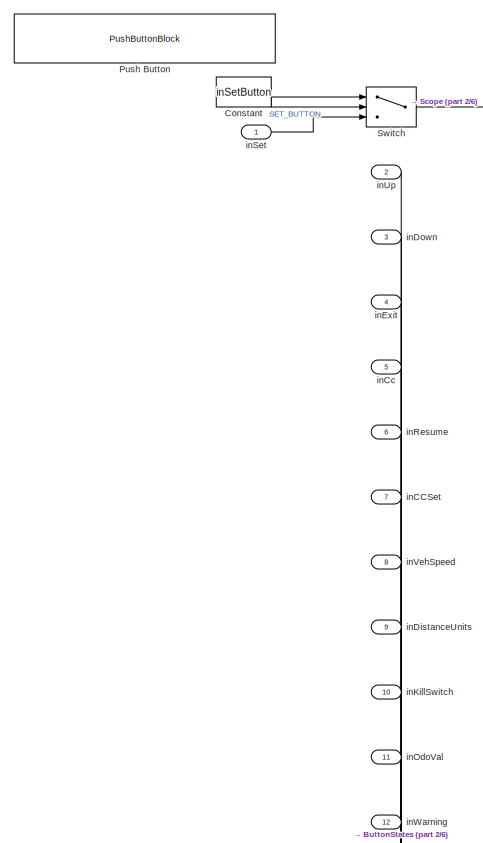
[diagram: root canvas - part 1/6, top left region]
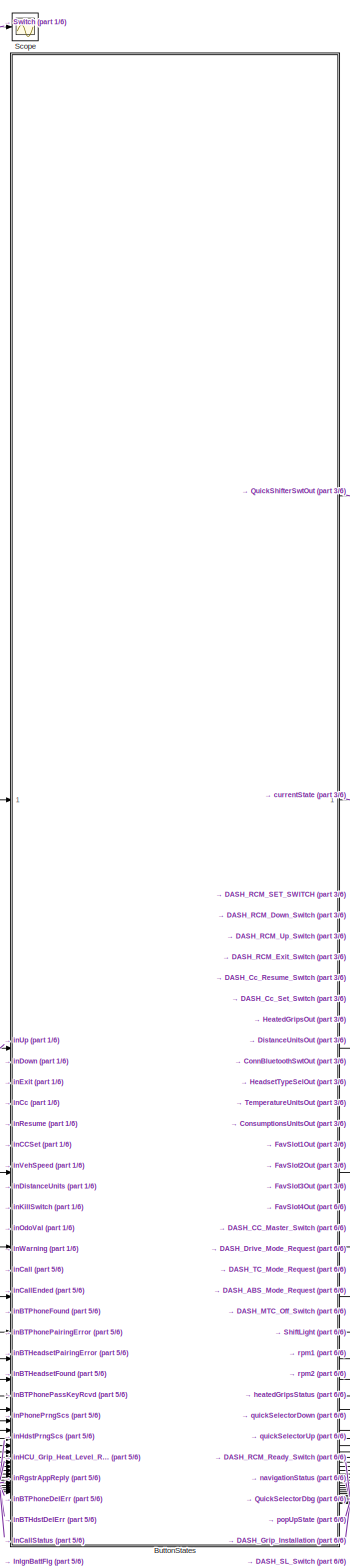
[diagram: root canvas - part 2/6, center side, full height]
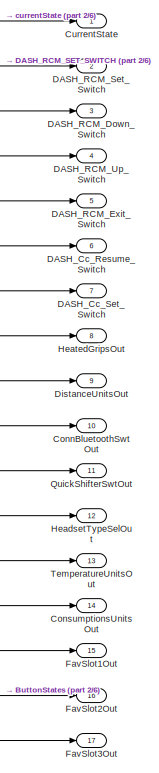
[diagram: root canvas - part 3/6, top right region]
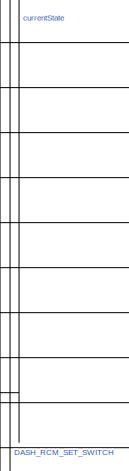
[diagram: root canvas - part 4/6, middle right region]
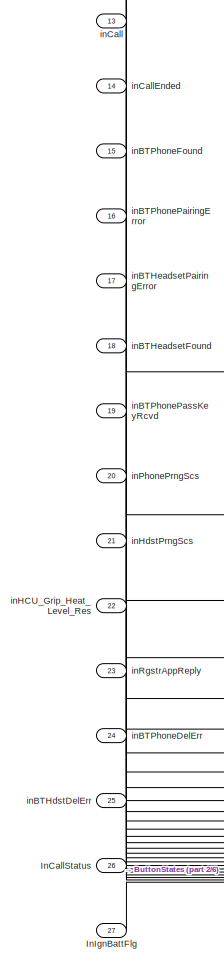
[diagram: root canvas - part 5/6, bottom left region]
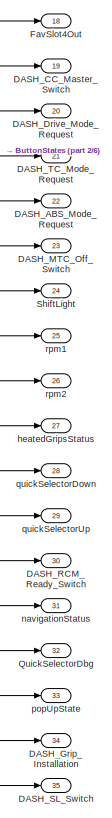
[diagram: root canvas - part 6/6, bottom right region]
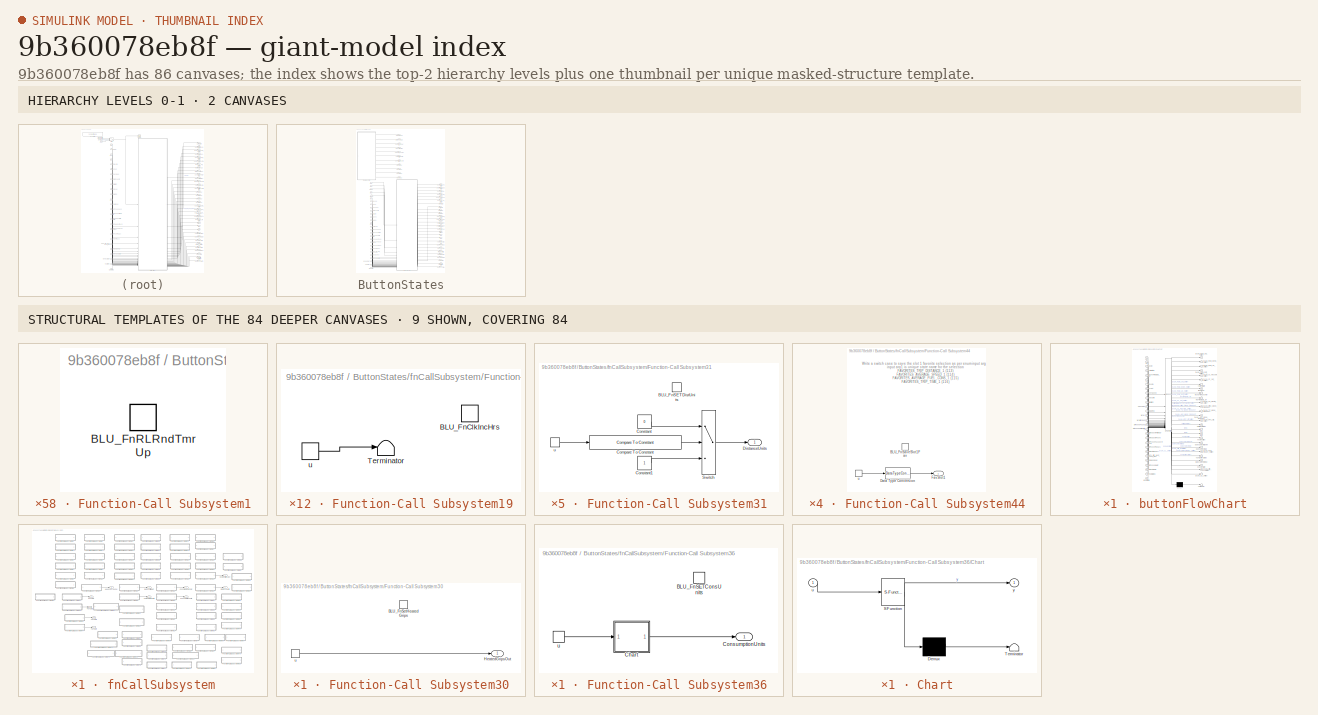
[diagram: thumbnail index - top-2 hierarchy levels (2 canvases) + 9 structural-template representatives of the remaining 84 canvases]
MODEL slx_9b360078eb8f
KIND model
CONFIG AbsTol = auto
CONFIG EnableMultiTasking = on
CONFIG FixedStep = 0.1
CONFIG MaxStep = auto
CONFIG MinStep = auto
CONFIG RelTol = 1e-3
CONFIG SampleTimeConstraint = Unconstrained
CONFIG SolverName = FixedStepDiscrete
CONFIG StartTime = 0.0
CONFIG StopTime = 10.0
WORKSPACE source: mxarray member
WORKSPACE inSetButton = 0
BLOCK [SubSystem] ButtonStates
BLOCK [Outport] ButtonStates/ConnBluetoothSwtOut
  Port = 10
BLOCK [Outport] ButtonStates/ConsumptionsUnitsOut
  Port = 14
BLOCK [Outport] ButtonStates/CurrentState
BLOCK [Outport] ButtonStates/DASH_ABS_Mode_Request
  Port = 22
BLOCK [Outport] ButtonStates/DASH_CC_Master_Switch
  Port = 19
BLOCK [Outport] ButtonStates/DASH_Cc_Resume_Switch
  Port = 6
BLOCK [Outport] ButtonStates/DASH_Cc_Set_Switch
  Port = 7
BLOCK [Outport] ButtonStates/DASH_Drive_Mode_Request
  Port = 20
BLOCK [Outport] ButtonStates/DASH_Grip_Installation
  Port = 34
BLOCK [Outport] ButtonStates/DASH_MTC_Off_Switch
  Port = 23
BLOCK [Outport] ButtonStates/DASH_RCM_Down_Switch
  Port = 3
BLOCK [Outport] ButtonStates/DASH_RCM_Exit_Switch
  Port = 5
BLOCK [Outport] ButtonStates/DASH_RCM_Ready_Switch
  Port = 30
BLOCK [Outport] ButtonStates/DASH_RCM_Set_Switch
  Port = 2
BLOCK [Outport] ButtonStates/DASH_RCM_Up_Switch
  Port = 4
BLOCK [Outport] ButtonStates/DASH_SL_Switch
  OutDataTypeStr = uint8
  Port = 35
BLOCK [Outport] ButtonStates/DASH_TC_Mode_Request
  Port = 21
BLOCK [Outport] ButtonStates/DistanceUnitsOut
  Port = 9
BLOCK [Outport] ButtonStates/FavSlot1Out
  Port = 15
BLOCK [Outport] ButtonStates/FavSlot2Out
  Port = 16
BLOCK [Outport] ButtonStates/FavSlot3Out
  Port = 17
BLOCK [Outport] ButtonStates/FavSlot4Out
  Port = 18
BLOCK [Ground] ButtonStates/Ground
BLOCK [Outport] ButtonStates/HeadsetTypeSelOut
  Port = 12
BLOCK [Outport] ButtonStates/HeatedGripsOut
  Port = 8
BLOCK [Inport] ButtonStates/InCallStatus
  OutDataTypeStr = uint8
  Port = 26
BLOCK [Inport] ButtonStates/InIgnBattFlg
  Port = 27
BLOCK [Outport] ButtonStates/QuickSelectorDbg
  Port = 32
BLOCK [Outport] ButtonStates/QuickShifterSwtOut
  Port = 11
BLOCK [Outport] ButtonStates/ShiftLight
  Port = 24
BLOCK [Outport] ButtonStates/TemperatureUnitsOut
  Port = 13
BLOCK [Terminator] ButtonStates/Terminator10
BLOCK [Terminator] ButtonStates/Terminator11
BLOCK [Terminator] ButtonStates/Terminator8
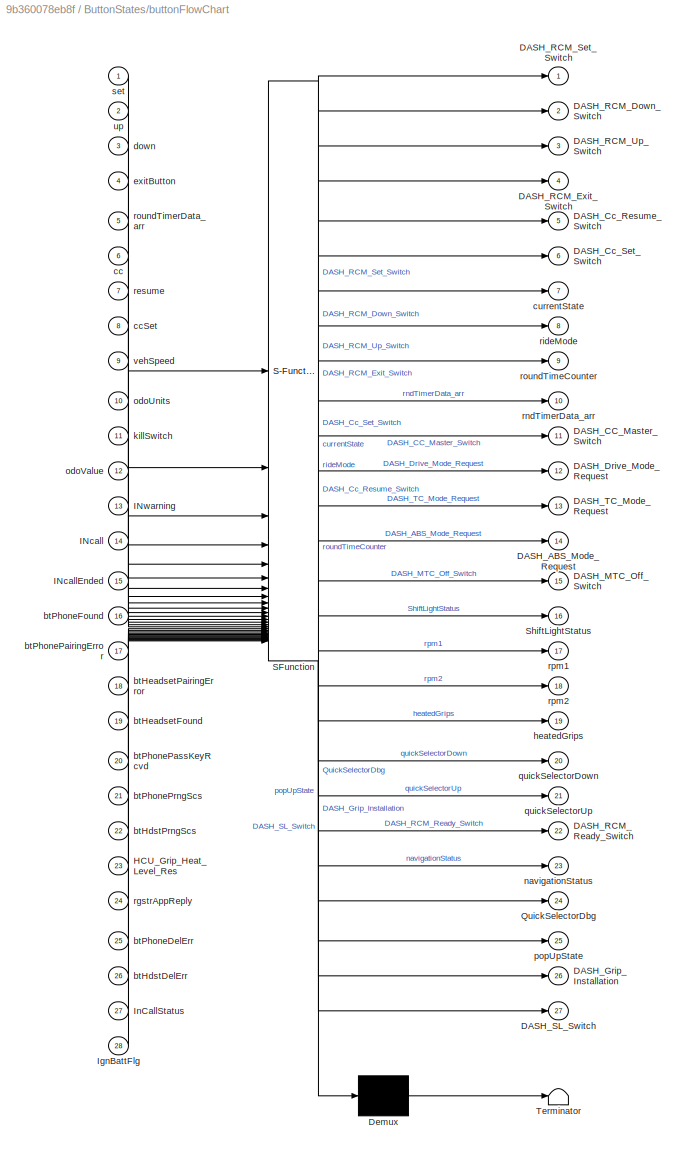
BLOCK [SubSystem] ButtonStates/buttonFlowChart
  ErrorFcn = Stateflow.Translate.translate
  PermitHierarchicalResolution = ExplicitOnly
  SFBlockType = Chart
  TreatAsAtomicUnit = on
BLOCK [Demux] ButtonStates/buttonFlowChart/ Demux 
  Outputs = 1
BLOCK [S-Function] ButtonStates/buttonFlowChart/ SFunction 
  EnableBusSupport = on
  FunctionName = sf_sfun
  Parameters = ABS_ABS_Mode_Response,ABS_Launch_Control_Feature,ABS_Mode_Feature,ABS_TC_MTC_Mode_Feature,ABS_TC_Mode_Response,BLU_BTSearchDur_Tms,BLU_CCDtctMax_Tms,BLU_CCDtctMin_Tms,BLU_CCSetDtctMax_Tms,BLU_CCSetDtctMin_Tms,BLU_DwnDtctMax_Tms,BLU_DwnDtctMin_Tms,BLU_ExitDtctMax_Tms,BLU_ExitDtctMin_Tms,BLU_LngDwnDtctMax_Tms,BLU_LngDwnDtctMin_Tms,BLU_LngExitDtctMax_Tms,BLU_LngExitDtctMin_Tms,BLU_LngSetDtctMax_Tms,B...<+456ch>
  PortCounts = [28 28]
  SFcnIsStateOwnerBlock = off
  SFunctionDeploymentMode = off
  Tag = Stateflow S-Function 3
BLOCK [Terminator] ButtonStates/buttonFlowChart/ Terminator 
BLOCK [Outport] ButtonStates/buttonFlowChart/DASH_ABS_Mode_Request
  Port = 14
BLOCK [Outport] ButtonStates/buttonFlowChart/DASH_CC_Master_Switch
  Port = 11
BLOCK [Outport] ButtonStates/buttonFlowChart/DASH_Cc_Resume_Switch
  Port = 5
BLOCK [Outport] ButtonStates/buttonFlowChart/DASH_Cc_Set_Switch
  Port = 6
BLOCK [Outport] ButtonStates/buttonFlowChart/DASH_Drive_Mode_Request
  Port = 12
BLOCK [Outport] ButtonStates/buttonFlowChart/DASH_Grip_Installation
  Port = 26
BLOCK [Outport] ButtonStates/buttonFlowChart/DASH_MTC_Off_Switch
  Port = 15
BLOCK [Outport] ButtonStates/buttonFlowChart/DASH_RCM_Down_Switch
  Port = 2
BLOCK [Outport] ButtonStates/buttonFlowChart/DASH_RCM_Exit_Switch
  Port = 4
BLOCK [Outport] ButtonStates/buttonFlowChart/DASH_RCM_Ready_Switch
  Port = 22
BLOCK [Outport] ButtonStates/buttonFlowChart/DASH_RCM_Set_Switch
BLOCK [Outport] ButtonStates/buttonFlowChart/DASH_RCM_Up_Switch
  Port = 3
BLOCK [Outport] ButtonStates/buttonFlowChart/DASH_SL_Switch
  Port = 27
BLOCK [Outport] ButtonStates/buttonFlowChart/DASH_TC_Mode_Request
  Port = 13
BLOCK [Inport] ButtonStates/buttonFlowChart/HCU_Grip_Heat_Level_Res
  Port = 23
BLOCK [Inport] ButtonStates/buttonFlowChart/INcall
  Port = 14
BLOCK [Inport] ButtonStates/buttonFlowChart/INcallEnded
  Port = 15
BLOCK [Inport] ButtonStates/buttonFlowChart/INwarning
  Port = 13
BLOCK [Inport] ButtonStates/buttonFlowChart/IgnBattFlg
  Port = 28
BLOCK [Inport] ButtonStates/buttonFlowChart/InCallStatus
  Port = 27
BLOCK [Outport] ButtonStates/buttonFlowChart/QuickSelectorDbg
  Port = 24
BLOCK [Outport] ButtonStates/buttonFlowChart/ShiftLightStatus
  Port = 16
BLOCK [Inport] ButtonStates/buttonFlowChart/btHdstDelErr
  Port = 26
BLOCK [Inport] ButtonStates/buttonFlowChart/btHdstPrngScs
  Port = 22
BLOCK [Inport] ButtonStates/buttonFlowChart/btHeadsetFound
  Port = 19
BLOCK [Inport] ButtonStates/buttonFlowChart/btHeadsetPairingError
  Port = 18
BLOCK [Inport] ButtonStates/buttonFlowChart/btPhoneDelErr
  Port = 25
BLOCK [Inport] ButtonStates/buttonFlowChart/btPhoneFound
  Port = 16
BLOCK [Inport] ButtonStates/buttonFlowChart/btPhonePairingError
  Port = 17
BLOCK [Inport] ButtonStates/buttonFlowChart/btPhonePassKeyRcvd
  Port = 20
BLOCK [Inport] ButtonStates/buttonFlowChart/btPhonePrngScs
  Port = 21
BLOCK [Inport] ButtonStates/buttonFlowChart/cc
  Port = 6
BLOCK [Inport] ButtonStates/buttonFlowChart/ccSet
  Port = 8
BLOCK [Outport] ButtonStates/buttonFlowChart/currentState
  Port = 7
BLOCK [Inport] ButtonStates/buttonFlowChart/down
  Port = 3
BLOCK [Inport] ButtonStates/buttonFlowChart/exitButton
  Port = 4
BLOCK [Outport] ButtonStates/buttonFlowChart/heatedGrips
  Port = 19
BLOCK [Inport] ButtonStates/buttonFlowChart/killSwitch
  Port = 11
BLOCK [Outport] ButtonStates/buttonFlowChart/navigationStatus
  Port = 23
BLOCK [Inport] ButtonStates/buttonFlowChart/odoUnits
  Port = 10
BLOCK [Inport] ButtonStates/buttonFlowChart/odoValue
  Port = 12
BLOCK [Outport] ButtonStates/buttonFlowChart/popUpState
  Port = 25
BLOCK [Outport] ButtonStates/buttonFlowChart/quickSelectorDown
  Port = 20
BLOCK [Outport] ButtonStates/buttonFlowChart/quickSelectorUp
  Port = 21
BLOCK [Inport] ButtonStates/buttonFlowChart/resume
  Port = 7
BLOCK [Inport] ButtonStates/buttonFlowChart/rgstrAppReply
  Port = 24
BLOCK [Outport] ButtonStates/buttonFlowChart/rideMode
  Port = 8
BLOCK [Outport] ButtonStates/buttonFlowChart/rndTimerData_arr
  Port = 10
BLOCK [Outport] ButtonStates/buttonFlowChart/roundTimeCounter
  Port = 9
BLOCK [Inport] ButtonStates/buttonFlowChart/roundTimerData_arr
  Port = 5
BLOCK [Outport] ButtonStates/buttonFlowChart/rpm1
  Port = 17
BLOCK [Outport] ButtonStates/buttonFlowChart/rpm2
  Port = 18
BLOCK [Inport] ButtonStates/buttonFlowChart/set
BLOCK [Inport] ButtonStates/buttonFlowChart/up
  Port = 2
BLOCK [Inport] ButtonStates/buttonFlowChart/vehSpeed
  Port = 9
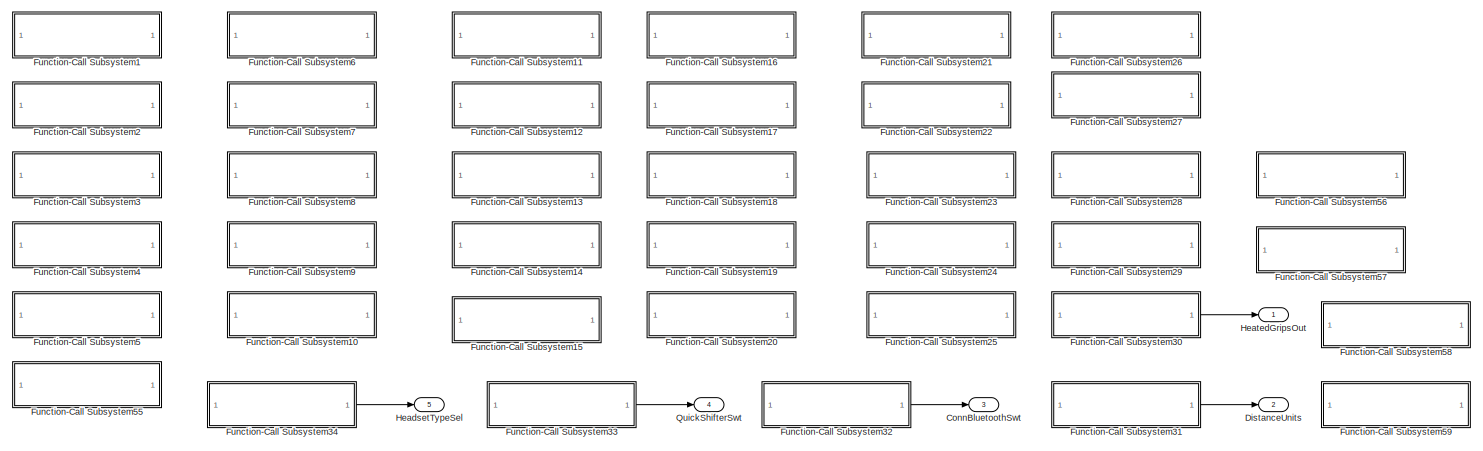
[diagram: ButtonStates/fnCallSubsystem - part 1/3, full width, top band]
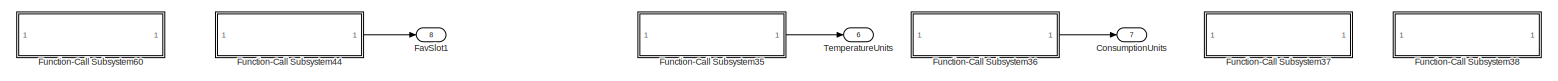
[diagram: ButtonStates/fnCallSubsystem - part 2/3, full width, middle band]
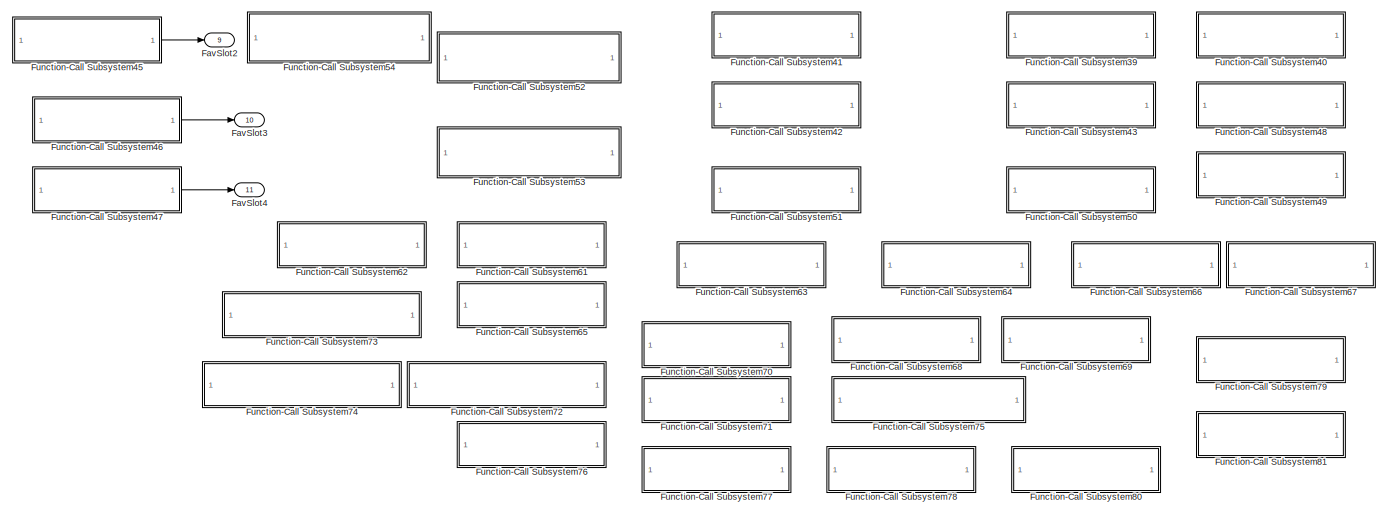
[diagram: ButtonStates/fnCallSubsystem - part 3/3, full width, bottom band]
BLOCK [SubSystem] ButtonStates/fnCallSubsystem
BLOCK [Outport] ButtonStates/fnCallSubsystem/ConnBluetoothSwt
  Port = 3
BLOCK [Outport] ButtonStates/fnCallSubsystem/ConsumptionUnits
  Port = 7
BLOCK [Outport] ButtonStates/fnCallSubsystem/DistanceUnits
  Port = 2
BLOCK [Outport] ButtonStates/fnCallSubsystem/FavSlot1
  Port = 8
BLOCK [Outport] ButtonStates/fnCallSubsystem/FavSlot2
  Port = 9
BLOCK [Outport] ButtonStates/fnCallSubsystem/FavSlot3
  Port = 10
BLOCK [Outport] ButtonStates/fnCallSubsystem/FavSlot4
  Port = 11
BLOCK [SubSystem] ButtonStates/fnCallSubsystem/Function-Call Subsystem1
  TreatAsAtomicUnit = on
BLOCK [TriggerPort] ButtonStates/fnCallSubsystem/Function-Call Subsystem1/BLU_FnRLRndTmrUp
  FunctionName = BLU_FnRLRndTmrUp
  IsSimulinkFunction = on
  StatesWhenEnabling = held
  TriggerType = function-call
  VariantControl = (inherit)
BLOCK [SubSystem] ButtonStates/fnCallSubsystem/Function-Call Subsystem10
  TreatAsAtomicUnit = on
BLOCK [TriggerPort] ButtonStates/fnCallSubsystem/Function-Call Subsystem10/BLU_FnCCSwtONCrsCtrl
  FunctionName = BLU_FnCCSwtONCrsCtrl
  IsSimulinkFunction = on
  StatesWhenEnabling = held
  TriggerType = function-call
  VariantControl = (inherit)
BLOCK [SubSystem] ButtonStates/fnCallSubsystem/Function-Call Subsystem11
  TreatAsAtomicUnit = on
BLOCK [TriggerPort] ButtonStates/fnCallSubsystem/Function-Call Subsystem11/BLU_FnAudioVolUp
  FunctionName = BLU_FnAudioVolUp
  IsSimulinkFunction = on
  StatesWhenEnabling = held
  TriggerType = function-call
  VariantControl = (inherit)
BLOCK [SubSystem] ButtonStates/fnCallSubsystem/Function-Call Subsystem12
  TreatAsAtomicUnit = on
BLOCK [TriggerPort] ButtonStates/fnCallSubsystem/Function-Call Subsystem12/BLU_FnAudioVolDwn
  FunctionName = BLU_FnAudioVolDwn
  IsSimulinkFunction = on
  StatesWhenEnabling = held
  TriggerType = function-call
  VariantControl = (inherit)
BLOCK [SubSystem] ButtonStates/fnCallSubsystem/Function-Call Subsystem13
  TreatAsAtomicUnit = on
BLOCK [TriggerPort] ButtonStates/fnCallSubsystem/Function-Call Subsystem13/BLU_FnAudioTglPlayPause
  FunctionName = BLU_FnAudioTglPlayPause
  IsSimulinkFunction = on
  StatesWhenEnabling = held
  TriggerType = function-call
  VariantControl = (inherit)
BLOCK [SubSystem] ButtonStates/fnCallSubsystem/Function-Call Subsystem14
  TreatAsAtomicUnit = on
BLOCK [TriggerPort] ButtonStates/fnCallSubsystem/Function-Call Subsystem14/BLU_FnAudioPrevTrack
  FunctionName = BLU_FnAudioPrevTrack
  IsSimulinkFunction = on
  StatesWhenEnabling = held
  TriggerType = function-call
  VariantControl = (inherit)
BLOCK [SubSystem] ButtonStates/fnCallSubsystem/Function-Call Subsystem15
  TreatAsAtomicUnit = on
BLOCK [TriggerPort] ButtonStates/fnCallSubsystem/Function-Call Subsystem15/BLU_FnAudioNextTrack
  FunctionName = BLU_FnAudioNextTrack
  IsSimulinkFunction = on
  StatesWhenEnabling = held
  TriggerType = function-call
  VariantControl = (inherit)
BLOCK [SubSystem] ButtonStates/fnCallSubsystem/Function-Call Subsystem16
  TreatAsAtomicUnit = on
BLOCK [TriggerPort] ButtonStates/fnCallSubsystem/Function-Call Subsystem16/BLU_FnNavVolUp
  FunctionName = BLU_FnNavVolUp
  IsSimulinkFunction = on
  StatesWhenEnabling = held
  TriggerType = function-call
  VariantControl = (inherit)
BLOCK [SubSystem] ButtonStates/fnCallSubsystem/Function-Call Subsystem17
  TreatAsAtomicUnit = on
BLOCK [TriggerPort] ButtonStates/fnCallSubsystem/Function-Call Subsystem17/BLU_FnNavVolDwn
  FunctionName = BLU_FnNavVolDwn
  IsSimulinkFunction = on
  StatesWhenEnabling = held
  TriggerType = function-call
  VariantControl = (inherit)
BLOCK [SubSystem] ButtonStates/fnCallSubsystem/Function-Call Subsystem18
  TreatAsAtomicUnit = on
BLOCK [TriggerPort] ButtonStates/fnCallSubsystem/Function-Call Subsystem18/BLU_FnClkSaveTime
  FunctionName = BLU_FnClkSaveTime
  IsSimulinkFunction = on
  StatesWhenEnabling = held
  TriggerType = function-call
  VariantControl = (inherit)
BLOCK [SubSystem] ButtonStates/fnCallSubsystem/Function-Call Subsystem19
  TreatAsAtomicUnit = on
BLOCK [TriggerPort] ButtonStates/fnCallSubsystem/Function-Call Subsystem19/BLU_FnClkIncHrs
  FunctionName = BLU_FnClkIncHrs
  IsSimulinkFunction = on
  StatesWhenEnabling = held
  TriggerType = function-call
  VariantControl = (inherit)
BLOCK [Terminator] ButtonStates/fnCallSubsystem/Function-Call Subsystem19/Terminator
BLOCK [ArgIn] ButtonStates/fnCallSubsystem/Function-Call Subsystem19/u
  ArgumentName = u
BLOCK [SubSystem] ButtonStates/fnCallSubsystem/Function-Call Subsystem2
  TreatAsAtomicUnit = on
BLOCK [TriggerPort] ButtonStates/fnCallSubsystem/Function-Call Subsystem2/BLU_FnRLRndTmrDwn
  FunctionName = BLU_FnRLRndTmrDwn
  IsSimulinkFunction = on
  StatesWhenEnabling = held
  TriggerType = function-call
  VariantControl = (inherit)
BLOCK [SubSystem] ButtonStates/fnCallSubsystem/Function-Call Subsystem20
  TreatAsAtomicUnit = on
BLOCK [TriggerPort] ButtonStates/fnCallSubsystem/Function-Call Subsystem20/BLU_FnClkDecHrs
  FunctionName = BLU_FnClkDecHrs
  IsSimulinkFunction = on
  StatesWhenEnabling = held
  TriggerType = function-call
  VariantControl = (inherit)
BLOCK [Terminator] ButtonStates/fnCallSubsystem/Function-Call Subsystem20/Terminator
BLOCK [ArgIn] ButtonStates/fnCallSubsystem/Function-Call Subsystem20/u
  ArgumentName = u
BLOCK [SubSystem] ButtonStates/fnCallSubsystem/Function-Call Subsystem21
  TreatAsAtomicUnit = on
BLOCK [TriggerPort] ButtonStates/fnCallSubsystem/Function-Call Subsystem21/BLU_FnClkIncMins
  FunctionName = BLU_FnClkIncMins
  IsSimulinkFunction = on
  StatesWhenEnabling = held
  TriggerType = function-call
  VariantControl = (inherit)
BLOCK [Terminator] ButtonStates/fnCallSubsystem/Function-Call Subsystem21/Terminator
BLOCK [ArgIn] ButtonStates/fnCallSubsystem/Function-Call Subsystem21/u
  ArgumentName = u
BLOCK [SubSystem] ButtonStates/fnCallSubsystem/Function-Call Subsystem22
  TreatAsAtomicUnit = on
BLOCK [TriggerPort] ButtonStates/fnCallSubsystem/Function-Call Subsystem22/BLU_FnClkDecMins
  FunctionName = BLU_FnClkDecMins
  IsSimulinkFunction = on
  StatesWhenEnabling = held
  TriggerType = function-call
  VariantControl = (inherit)
BLOCK [Terminator] ButtonStates/fnCallSubsystem/Function-Call Subsystem22/Terminator
BLOCK [ArgIn] ButtonStates/fnCallSubsystem/Function-Call Subsystem22/u
  ArgumentName = u
BLOCK [SubSystem] ButtonStates/fnCallSubsystem/Function-Call Subsystem23
  TreatAsAtomicUnit = on
BLOCK [TriggerPort] ButtonStates/fnCallSubsystem/Function-Call Subsystem23/BLU_FnClkSaveDate
  FunctionName = BLU_FnClkSaveDate
  IsSimulinkFunction = on
  StatesWhenEnabling = held
  TriggerType = function-call
  VariantControl = (inherit)
BLOCK [SubSystem] ButtonStates/fnCallSubsystem/Function-Call Subsystem24
  TreatAsAtomicUnit = on
BLOCK [TriggerPort] ButtonStates/fnCallSubsystem/Function-Call Subsystem24/BLU_FnClkIncDateDig3
  FunctionName = BLU_FnClkIncDateDig3
  IsSimulinkFunction = on
  StatesWhenEnabling = held
  TriggerType = function-call
  VariantControl = (inherit)
BLOCK [SubSystem] ButtonStates/fnCallSubsystem/Function-Call Subsystem25
  TreatAsAtomicUnit = on
BLOCK [TriggerPort] ButtonStates/fnCallSubsystem/Function-Call Subsystem25/BLU_FnClkIncDateDig2
  FunctionName = BLU_FnClkIncDateDig2
  IsSimulinkFunction = on
  StatesWhenEnabling = held
  TriggerType = function-call
  VariantControl = (inherit)
BLOCK [SubSystem] ButtonStates/fnCallSubsystem/Function-Call Subsystem26
  TreatAsAtomicUnit = on
BLOCK [TriggerPort] ButtonStates/fnCallSubsystem/Function-Call Subsystem26/BLU_FnClkIncDateDig1
  FunctionName = BLU_FnClkIncDateDig1
  IsSimulinkFunction = on
  StatesWhenEnabling = held
  TriggerType = function-call
  VariantControl = (inherit)
BLOCK [SubSystem] ButtonStates/fnCallSubsystem/Function-Call Subsystem27
  TreatAsAtomicUnit = on
BLOCK [TriggerPort] ButtonStates/fnCallSubsystem/Function-Call Subsystem27/BLU_FnClkDecDateDig3
  FunctionName = BLU_FnClkDecDateDig3
  IsSimulinkFunction = on
  StatesWhenEnabling = held
  TriggerType = function-call
  VariantControl = (inherit)
BLOCK [SubSystem] ButtonStates/fnCallSubsystem/Function-Call Subsystem28
  TreatAsAtomicUnit = on
BLOCK [TriggerPort] ButtonStates/fnCallSubsystem/Function-Call Subsystem28/BLU_FnClkDecDateDig2
  FunctionName = BLU_FnClkDecDateDig2
  IsSimulinkFunction = on
  StatesWhenEnabling = held
  TriggerType = function-call
  VariantControl = (inherit)
BLOCK [SubSystem] ButtonStates/fnCallSubsystem/Function-Call Subsystem29
  TreatAsAtomicUnit = on
BLOCK [TriggerPort] ButtonStates/fnCallSubsystem/Function-Call Subsystem29/BLU_FnClkDecDateDig1
  FunctionName = BLU_FnClkDecDateDig1
  IsSimulinkFunction = on
  StatesWhenEnabling = held
  TriggerType = function-call
  VariantControl = (inherit)
BLOCK [SubSystem] ButtonStates/fnCallSubsystem/Function-Call Subsystem3
  TreatAsAtomicUnit = on
BLOCK [TriggerPort] ButtonStates/fnCallSubsystem/Function-Call Subsystem3/BLU_FnRLResetRndTmr
  FunctionName = BLU_FnRLResetRndTmr
  IsSimulinkFunction = on
  StatesWhenEnabling = held
  TriggerType = function-call
  VariantControl = (inherit)
BLOCK [SubSystem] ButtonStates/fnCallSubsystem/Function-Call Subsystem30
  TreatAsAtomicUnit = on
BLOCK [TriggerPort] ButtonStates/fnCallSubsystem/Function-Call Subsystem30/BLU_FnSetHeatedGrips
  FunctionName = BLU_FnSetHeatedGrips
  IsSimulinkFunction = on
  StatesWhenEnabling = held
  TriggerType = function-call
  VariantControl = (inherit)
BLOCK [Outport] ButtonStates/fnCallSubsystem/Function-Call Subsystem30/HeatedGripsOut
BLOCK [ArgIn] ButtonStates/fnCallSubsystem/Function-Call Subsystem30/u
  ArgumentName = u
  OutDataTypeStr = Enum: eStateName
BLOCK [SubSystem] ButtonStates/fnCallSubsystem/Function-Call Subsystem31
  TreatAsAtomicUnit = on
BLOCK [TriggerPort] ButtonStates/fnCallSubsystem/Function-Call Subsystem31/BLU_FnSETDistUnits
  FunctionName = BLU_FnSETDistUnits
  IsSimulinkFunction = on
  StatesWhenEnabling = held
  TriggerType = function-call
  VariantControl = (inherit)
BLOCK [Reference] ButtonStates/fnCallSubsystem/Function-Call Subsystem31/Compare To Constant  REF=simulink/Logic and Bit
Operations/Compare
To Constant
  SourceBlock = simulink/Logic and Bit\nOperations/Compare\nTo Constant
  SourceType = Compare To Constant
BLOCK [Constant] ButtonStates/fnCallSubsystem/Function-Call Subsystem31/Constant
  OutDataTypeStr = uint8
  Value = 0
BLOCK [Constant] ButtonStates/fnCallSubsystem/Function-Call Subsystem31/Constant1
  OutDataTypeStr = uint8
BLOCK [Outport] ButtonStates/fnCallSubsystem/Function-Call Subsystem31/DistanceUnits
BLOCK [Switch] ButtonStates/fnCallSubsystem/Function-Call Subsystem31/Switch
  Criteria = u2 > Threshold
  InputSameDT = off
  SaturateOnIntegerOverflow = off
BLOCK [ArgIn] ButtonStates/fnCallSubsystem/Function-Call Subsystem31/u
  ArgumentName = u
  OutDataTypeStr = Enum: eStateName
BLOCK [SubSystem] ButtonStates/fnCallSubsystem/Function-Call Subsystem32
  TreatAsAtomicUnit = on
BLOCK [TriggerPort] ButtonStates/fnCallSubsystem/Function-Call Subsystem32/BLU_FnConnBTSwitch
  FunctionName = BLU_FnConnBTSwitch
  IsSimulinkFunction = on
  StatesWhenEnabling = held
  TriggerType = function-call
  VariantControl = (inherit)
BLOCK [Reference] ButtonStates/fnCallSubsystem/Function-Call Subsystem32/Compare To Constant  REF=simulink/Logic and Bit
Operations/Compare
To Constant
  SourceBlock = simulink/Logic and Bit\nOperations/Compare\nTo Constant
  SourceType = Compare To Constant
BLOCK [Outport] ButtonStates/fnCallSubsystem/Function-Call Subsystem32/ConnBluetoothSwt
BLOCK [Constant] ButtonStates/fnCallSubsystem/Function-Call Subsystem32/Constant
  OutDataTypeStr = uint8
BLOCK [Constant] ButtonStates/fnCallSubsystem/Function-Call Subsystem32/Constant1
  OutDataTypeStr = uint8
  Value = 0
BLOCK [Switch] ButtonStates/fnCallSubsystem/Function-Call Subsystem32/Switch
  Criteria = u2 > Threshold
  InputSameDT = off
  SaturateOnIntegerOverflow = off
BLOCK [ArgIn] ButtonStates/fnCallSubsystem/Function-Call Subsystem32/u
  ArgumentName = u
  OutDataTypeStr = Enum: eStateName
BLOCK [SubSystem] ButtonStates/fnCallSubsystem/Function-Call Subsystem33
  TreatAsAtomicUnit = on
BLOCK [TriggerPort] ButtonStates/fnCallSubsystem/Function-Call Subsystem33/BLU_FnQuickShifterSwitch
  FunctionName = BLU_FnQuickShifterSwitch
  IsSimulinkFunction = on
  StatesWhenEnabling = held
  TriggerType = function-call
  VariantControl = (inherit)
BLOCK [Reference] ButtonStates/fnCallSubsystem/Function-Call Subsystem33/Compare To Constant  REF=simulink/Logic and Bit
Operations/Compare
To Constant
  SourceBlock = simulink/Logic and Bit\nOperations/Compare\nTo Constant
  SourceType = Compare To Constant
BLOCK [Constant] ButtonStates/fnCallSubsystem/Function-Call Subsystem33/Constant
  OutDataTypeStr = uint8
BLOCK [Constant] ButtonStates/fnCallSubsystem/Function-Call Subsystem33/Constant1
  OutDataTypeStr = uint8
  Value = 0
BLOCK [Outport] ButtonStates/fnCallSubsystem/Function-Call Subsystem33/QuickShifterSwt
BLOCK [Switch] ButtonStates/fnCallSubsystem/Function-Call Subsystem33/Switch
  Criteria = u2 > Threshold
  InputSameDT = off
  SaturateOnIntegerOverflow = off
BLOCK [ArgIn] ButtonStates/fnCallSubsystem/Function-Call Subsystem33/u
  ArgumentName = u
  OutDataTypeStr = Enum: eStateName
BLOCK [SubSystem] ButtonStates/fnCallSubsystem/Function-Call Subsystem34
  TreatAsAtomicUnit = on
BLOCK [TriggerPort] ButtonStates/fnCallSubsystem/Function-Call Subsystem34/BLU_FnSetHeadsetType
  FunctionName = BLU_FnSetHeadsetType
  IsSimulinkFunction = on
  StatesWhenEnabling = held
  TriggerType = function-call
  VariantControl = (inherit)
BLOCK [Reference] ButtonStates/fnCallSubsystem/Function-Call Subsystem34/Compare To Constant  REF=simulink/Logic and Bit
Operations/Compare
To Constant
  SourceBlock = simulink/Logic and Bit\nOperations/Compare\nTo Constant
  SourceType = Compare To Constant
BLOCK [Constant] ButtonStates/fnCallSubsystem/Function-Call Subsystem34/Constant
  OutDataTypeStr = uint8
BLOCK [Constant] ButtonStates/fnCallSubsystem/Function-Call Subsystem34/Constant1
  OutDataTypeStr = uint8
  Value = 0
BLOCK [Outport] ButtonStates/fnCallSubsystem/Function-Call Subsystem34/HeadsetTypeSel
BLOCK [Switch] ButtonStates/fnCallSubsystem/Function-Call Subsystem34/Switch
  Criteria = u2 > Threshold
  InputSameDT = off
  SaturateOnIntegerOverflow = off
BLOCK [ArgIn] ButtonStates/fnCallSubsystem/Function-Call Subsystem34/u
  ArgumentName = u
  OutDataTypeStr = Enum: eStateName
BLOCK [SubSystem] ButtonStates/fnCallSubsystem/Function-Call Subsystem35
  TreatAsAtomicUnit = on
BLOCK [TriggerPort] ButtonStates/fnCallSubsystem/Function-Call Subsystem35/BLU_FnSETTempUnits
  FunctionName = BLU_FnSETTempUnits
  IsSimulinkFunction = on
  StatesWhenEnabling = held
  TriggerType = function-call
  VariantControl = (inherit)
BLOCK [Reference] ButtonStates/fnCallSubsystem/Function-Call Subsystem35/Compare To Constant  REF=simulink/Logic and Bit
Operations/Compare
To Constant
  SourceBlock = simulink/Logic and Bit\nOperations/Compare\nTo Constant
  SourceType = Compare To Constant
BLOCK [Constant] ButtonStates/fnCallSubsystem/Function-Call Subsystem35/Constant
  OutDataTypeStr = uint8
  Value = 0
BLOCK [Constant] ButtonStates/fnCallSubsystem/Function-Call Subsystem35/Constant1
  OutDataTypeStr = uint8
BLOCK [Switch] ButtonStates/fnCallSubsystem/Function-Call Subsystem35/Switch
  Criteria = u2 > Threshold
  InputSameDT = off
  SaturateOnIntegerOverflow = off
BLOCK [Outport] ButtonStates/fnCallSubsystem/Function-Call Subsystem35/TemperatureUnits
BLOCK [ArgIn] ButtonStates/fnCallSubsystem/Function-Call Subsystem35/u
  ArgumentName = u
  OutDataTypeStr = Enum: eStateName
BLOCK [SubSystem] ButtonStates/fnCallSubsystem/Function-Call Subsystem36
  TreatAsAtomicUnit = on
BLOCK [TriggerPort] ButtonStates/fnCallSubsystem/Function-Call Subsystem36/BLU_FnSETConsUnits
  FunctionName = BLU_FnSETConsUnits
  IsSimulinkFunction = on
  StatesWhenEnabling = held
  TriggerType = function-call
  VariantControl = (inherit)
BLOCK [SubSystem] ButtonStates/fnCallSubsystem/Function-Call Subsystem36/Chart
  ErrorFcn = Stateflow.Translate.translate
  PermitHierarchicalResolution = ExplicitOnly
  SFBlockType = Chart
  TreatAsAtomicUnit = on
BLOCK [Demux] ButtonStates/fnCallSubsystem/Function-Call Subsystem36/Chart/ Demux 
  Outputs = 1
BLOCK [S-Function] ButtonStates/fnCallSubsystem/Function-Call Subsystem36/Chart/ SFunction 
  EnableBusSupport = on
  FunctionName = sf_sfun
  PortCounts = [1 2]
  SFcnIsStateOwnerBlock = off
  SFunctionDeploymentMode = off
  Tag = Stateflow S-Function 1
BLOCK [Terminator] ButtonStates/fnCallSubsystem/Function-Call Subsystem36/Chart/ Terminator 
BLOCK [Inport] ButtonStates/fnCallSubsystem/Function-Call Subsystem36/Chart/u
BLOCK [Outport] ButtonStates/fnCallSubsystem/Function-Call Subsystem36/Chart/y
BLOCK [Outport] ButtonStates/fnCallSubsystem/Function-Call Subsystem36/ConsumptionUnits
BLOCK [ArgIn] ButtonStates/fnCallSubsystem/Function-Call Subsystem36/u
  ArgumentName = u
  OutDataTypeStr = Enum: eStateName
BLOCK [SubSystem] ButtonStates/fnCallSubsystem/Function-Call Subsystem37
  TreatAsAtomicUnit = on
BLOCK [TriggerPort] ButtonStates/fnCallSubsystem/Function-Call Subsystem37/BLU_FnIncSrvcDistKM
  FunctionName = BLU_FnIncSrvcDistKM
  IsSimulinkFunction = on
  StatesWhenEnabling = held
  TriggerType = function-call
  VariantControl = (inherit)
BLOCK [SubSystem] ButtonStates/fnCallSubsystem/Function-Call Subsystem38
  TreatAsAtomicUnit = on
BLOCK [TriggerPort] ButtonStates/fnCallSubsystem/Function-Call Subsystem38/BLU_FnDecSrvcDistKM
  FunctionName = BLU_FnDecSrvcDistKM
  IsSimulinkFunction = on
  StatesWhenEnabling = held
  TriggerType = function-call
  VariantControl = (inherit)
BLOCK [SubSystem] ButtonStates/fnCallSubsystem/Function-Call Subsystem39
  TreatAsAtomicUnit = on
BLOCK [TriggerPort] ButtonStates/fnCallSubsystem/Function-Call Subsystem39/BLU_FnIncSrvcDistMI
  FunctionName = BLU_FnIncSrvcDistMI
  IsSimulinkFunction = on
  StatesWhenEnabling = held
  TriggerType = function-call
  VariantControl = (inherit)
BLOCK [SubSystem] ButtonStates/fnCallSubsystem/Function-Call Subsystem4
  TreatAsAtomicUnit = on
BLOCK [TriggerPort] ButtonStates/fnCallSubsystem/Function-Call Subsystem4/BLU_FnTIResetTrip1
  FunctionName = BLU_FnTIResetTrip1
  IsSimulinkFunction = on
  StatesWhenEnabling = held
  TriggerType = function-call
  VariantControl = (inherit)
BLOCK [SubSystem] ButtonStates/fnCallSubsystem/Function-Call Subsystem40
  TreatAsAtomicUnit = on
BLOCK [TriggerPort] ButtonStates/fnCallSubsystem/Function-Call Subsystem40/BLU_FnDecSrvcDistMI
  FunctionName = BLU_FnDecSrvcDistMI
  IsSimulinkFunction = on
  StatesWhenEnabling = held
  TriggerType = function-call
  VariantControl = (inherit)
BLOCK [SubSystem] ButtonStates/fnCallSubsystem/Function-Call Subsystem41
  TreatAsAtomicUnit = on
BLOCK [TriggerPort] ButtonStates/fnCallSubsystem/Function-Call Subsystem41/BLU_FnDecSrvcMonths
  FunctionName = BLU_FnDecSrvcMonths
  IsSimulinkFunction = on
  StatesWhenEnabling = held
  TriggerType = function-call
  VariantControl = (inherit)
BLOCK [SubSystem] ButtonStates/fnCallSubsystem/Function-Call Subsystem42
  TreatAsAtomicUnit = on
BLOCK [TriggerPort] ButtonStates/fnCallSubsystem/Function-Call Subsystem42/BLU_FnIncSrvcMonths
  FunctionName = BLU_FnIncSrvcMonths
  IsSimulinkFunction = on
  StatesWhenEnabling = held
  TriggerType = function-call
  VariantControl = (inherit)
BLOCK [SubSystem] ButtonStates/fnCallSubsystem/Function-Call Subsystem43
  TreatAsAtomicUnit = on
BLOCK [TriggerPort] ButtonStates/fnCallSubsystem/Function-Call Subsystem43/BLU_FnSaveSrvcChanges
  FunctionName = BLU_FnSaveSrvcChanges
  IsSimulinkFunction = on
  StatesWhenEnabling = held
  TriggerType = function-call
  VariantControl = (inherit)
BLOCK [SubSystem] ButtonStates/fnCallSubsystem/Function-Call Subsystem44
  TreatAsAtomicUnit = on
BLOCK [TriggerPort] ButtonStates/fnCallSubsystem/Function-Call Subsystem44/BLU_FnSaveSlot1Fav
  FunctionName = BLU_FnSaveSlot1Fav
  IsSimulinkFunction = on
  StatesWhenEnabling = held
  TriggerType = function-call
  VariantControl = (inherit)
BLOCK [DataTypeConversion] ButtonStates/fnCallSubsystem/Function-Call Subsystem44/Data Type Conversion
  OutDataTypeStr = uint8
  RndMeth = Floor
  SaturateOnIntegerOverflow = off
BLOCK [Outport] ButtonStates/fnCallSubsystem/Function-Call Subsystem44/FavSlot1
  OutDataTypeStr = uint8
BLOCK [ArgIn] ButtonStates/fnCallSubsystem/Function-Call Subsystem44/u
  ArgumentName = u
BLOCK [SubSystem] ButtonStates/fnCallSubsystem/Function-Call Subsystem45
  TreatAsAtomicUnit = on
BLOCK [TriggerPort] ButtonStates/fnCallSubsystem/Function-Call Subsystem45/BLU_FnSaveSlot2Fav
  FunctionName = BLU_FnSaveSlot2Fav
  IsSimulinkFunction = on
  StatesWhenEnabling = held
  TriggerType = function-call
  VariantControl = (inherit)
BLOCK [DataTypeConversion] ButtonStates/fnCallSubsystem/Function-Call Subsystem45/Data Type Conversion
  OutDataTypeStr = uint8
  RndMeth = Floor
  SaturateOnIntegerOverflow = off
BLOCK [Outport] ButtonStates/fnCallSubsystem/Function-Call Subsystem45/FavSlot2
  OutDataTypeStr = uint8
BLOCK [ArgIn] ButtonStates/fnCallSubsystem/Function-Call Subsystem45/u
  ArgumentName = u
BLOCK [SubSystem] ButtonStates/fnCallSubsystem/Function-Call Subsystem46
  TreatAsAtomicUnit = on
BLOCK [TriggerPort] ButtonStates/fnCallSubsystem/Function-Call Subsystem46/BLU_FnSaveSlot3Fav
  FunctionName = BLU_FnSaveSlot3Fav
  IsSimulinkFunction = on
  StatesWhenEnabling = held
  TriggerType = function-call
  VariantControl = (inherit)
BLOCK [DataTypeConversion] ButtonStates/fnCallSubsystem/Function-Call Subsystem46/Data Type Conversion
  OutDataTypeStr = uint8
  RndMeth = Floor
  SaturateOnIntegerOverflow = off
BLOCK [Outport] ButtonStates/fnCallSubsystem/Function-Call Subsystem46/FavSlot3
  OutDataTypeStr = uint8
BLOCK [ArgIn] ButtonStates/fnCallSubsystem/Function-Call Subsystem46/u
  ArgumentName = u
BLOCK [SubSystem] ButtonStates/fnCallSubsystem/Function-Call Subsystem47
  TreatAsAtomicUnit = on
BLOCK [TriggerPort] ButtonStates/fnCallSubsystem/Function-Call Subsystem47/BLU_FnSaveSlot4Fav
  FunctionName = BLU_FnSaveSlot4Fav
  IsSimulinkFunction = on
  StatesWhenEnabling = held
  TriggerType = function-call
  VariantControl = (inherit)
BLOCK [DataTypeConversion] ButtonStates/fnCallSubsystem/Function-Call Subsystem47/Data Type Conversion
  OutDataTypeStr = uint8
  RndMeth = Floor
  SaturateOnIntegerOverflow = off
BLOCK [Outport] ButtonStates/fnCallSubsystem/Function-Call Subsystem47/FavSlot4
  OutDataTypeStr = uint8
BLOCK [ArgIn] ButtonStates/fnCallSubsystem/Function-Call Subsystem47/u
  ArgumentName = u
BLOCK [SubSystem] ButtonStates/fnCallSubsystem/Function-Call Subsystem48
  TreatAsAtomicUnit = on
BLOCK [TriggerPort] ButtonStates/fnCallSubsystem/Function-Call Subsystem48/BLU_FnLaunchControlON
  FunctionName = BLU_FnLaunchControlON
  IsSimulinkFunction = on
  StatesWhenEnabling = held
  TriggerType = function-call
  VariantControl = (inherit)
BLOCK [SubSystem] ButtonStates/fnCallSubsystem/Function-Call Subsystem49
  TreatAsAtomicUnit = on
BLOCK [TriggerPort] ButtonStates/fnCallSubsystem/Function-Call Subsystem49/BLU_FnLaunchControlOFF
  FunctionName = BLU_FnLaunchControlOFF
  IsSimulinkFunction = on
  StatesWhenEnabling = held
  TriggerType = function-call
  VariantControl = (inherit)
BLOCK [SubSystem] ButtonStates/fnCallSubsystem/Function-Call Subsystem5
  TreatAsAtomicUnit = on
BLOCK [TriggerPort] ButtonStates/fnCallSubsystem/Function-Call Subsystem5/BLU_FnTIResetTrip2
  FunctionName = BLU_FnTIResetTrip2
  IsSimulinkFunction = on
  StatesWhenEnabling = held
  TriggerType = function-call
  VariantControl = (inherit)
BLOCK [SubSystem] ButtonStates/fnCallSubsystem/Function-Call Subsystem50
  TreatAsAtomicUnit = on
BLOCK [TriggerPort] ButtonStates/fnCallSubsystem/Function-Call Subsystem50/BLU_FnShiftLightOFF
  FunctionName = BLU_FnShiftLightOFF
  IsSimulinkFunction = on
  StatesWhenEnabling = held
  TriggerType = function-call
  VariantControl = (inherit)
BLOCK [SubSystem] ButtonStates/fnCallSubsystem/Function-Call Subsystem51
  TreatAsAtomicUnit = on
BLOCK [TriggerPort] ButtonStates/fnCallSubsystem/Function-Call Subsystem51/BLU_FnShiftLightON
  FunctionName = BLU_FnShiftLightON
  IsSimulinkFunction = on
  StatesWhenEnabling = held
  TriggerType = function-call
  VariantControl = (inherit)
BLOCK [SubSystem] ButtonStates/fnCallSubsystem/Function-Call Subsystem52
  TreatAsAtomicUnit = on
BLOCK [TriggerPort] ButtonStates/fnCallSubsystem/Function-Call Subsystem52/BLU_FnSetQuickSelectorUP
  FunctionName = BLU_FnSetQuickSelectorUP
  IsSimulinkFunction = on
  StatesWhenEnabling = held
  TriggerType = function-call
  VariantControl = (inherit)
BLOCK [Terminator] ButtonStates/fnCallSubsystem/Function-Call Subsystem52/Terminator
BLOCK [ArgIn] ButtonStates/fnCallSubsystem/Function-Call Subsystem52/u
  ArgumentName = u
BLOCK [SubSystem] ButtonStates/fnCallSubsystem/Function-Call Subsystem53
  TreatAsAtomicUnit = on
BLOCK [TriggerPort] ButtonStates/fnCallSubsystem/Function-Call Subsystem53/BLU_FnSetQuickSelectorDOWN
  FunctionName = BLU_FnSetQuickSelectorDOWN
  IsSimulinkFunction = on
  StatesWhenEnabling = held
  TriggerType = function-call
  VariantControl = (inherit)
BLOCK [Terminator] ButtonStates/fnCallSubsystem/Function-Call Subsystem53/Terminator
BLOCK [ArgIn] ButtonStates/fnCallSubsystem/Function-Call Subsystem53/u
  ArgumentName = u
BLOCK [SubSystem] ButtonStates/fnCallSubsystem/Function-Call Subsystem54
  TreatAsAtomicUnit = on
BLOCK [TriggerPort] ButtonStates/fnCallSubsystem/Function-Call Subsystem54/BLU_FnNavigationStatus
  FunctionName = BLU_FnNavigationStatus
  IsSimulinkFunction = on
  StatesWhenEnabling = held
  TriggerType = function-call
  VariantControl = (inherit)
BLOCK [Terminator] ButtonStates/fnCallSubsystem/Function-Call Subsystem54/Terminator
BLOCK [ArgIn] ButtonStates/fnCallSubsystem/Function-Call Subsystem54/u
  ArgumentName = u
BLOCK [SubSystem] ButtonStates/fnCallSubsystem/Function-Call Subsystem55
  TreatAsAtomicUnit = on
BLOCK [TriggerPort] ButtonStates/fnCallSubsystem/Function-Call Subsystem55/BLU_FnSETLanguage
  FunctionName = BLU_FnSETLanguage
  IsSimulinkFunction = on
  StatesWhenEnabling = held
  TriggerType = function-call
  VariantControl = (inherit)
BLOCK [Terminator] ButtonStates/fnCallSubsystem/Function-Call Subsystem55/Terminator
BLOCK [ArgIn] ButtonStates/fnCallSubsystem/Function-Call Subsystem55/u
  ArgumentName = u
  OutDataTypeStr = Enum: eStateName
BLOCK [SubSystem] ButtonStates/fnCallSubsystem/Function-Call Subsystem56
  TreatAsAtomicUnit = on
BLOCK [TriggerPort] ButtonStates/fnCallSubsystem/Function-Call Subsystem56/BLU_FnTISetAsOvwTrip1
  FunctionName = BLU_FnTISetAsOvwTrip1
  IsSimulinkFunction = on
  StatesWhenEnabling = held
  TriggerType = function-call
  VariantControl = (inherit)
BLOCK [SubSystem] ButtonStates/fnCallSubsystem/Function-Call Subsystem57
  TreatAsAtomicUnit = on
BLOCK [TriggerPort] ButtonStates/fnCallSubsystem/Function-Call Subsystem57/BLU_FnTISetAsOvwTrip2
  FunctionName = BLU_FnTISetAsOvwTrip2
  IsSimulinkFunction = on
  StatesWhenEnabling = held
  TriggerType = function-call
  VariantControl = (inherit)
BLOCK [SubSystem] ButtonStates/fnCallSubsystem/Function-Call Subsystem58
  TreatAsAtomicUnit = on
BLOCK [TriggerPort] ButtonStates/fnCallSubsystem/Function-Call Subsystem58/BLU_FnClkFrmtTgle
  FunctionName = BLU_FnClkFrmtTgle
  IsSimulinkFunction = on
  StatesWhenEnabling = held
  TriggerType = function-call
  VariantControl = (inherit)
BLOCK [Terminator] ButtonStates/fnCallSubsystem/Function-Call Subsystem58/Terminator
BLOCK [ArgIn] ButtonStates/fnCallSubsystem/Function-Call Subsystem58/u
  ArgumentName = u
  OutDataTypeStr = Enum: eStateName
BLOCK [SubSystem] ButtonStates/fnCallSubsystem/Function-Call Subsystem59
  TreatAsAtomicUnit = on
BLOCK [TriggerPort] ButtonStates/fnCallSubsystem/Function-Call Subsystem59/BLU_FnDateFrmtTgle
  FunctionName = BLU_FnDateFrmtTgle
  IsSimulinkFunction = on
  StatesWhenEnabling = held
  TriggerType = function-call
  VariantControl = (inherit)
BLOCK [Terminator] ButtonStates/fnCallSubsystem/Function-Call Subsystem59/Terminator
BLOCK [ArgIn] ButtonStates/fnCallSubsystem/Function-Call Subsystem59/u
  ArgumentName = u
  OutDataTypeStr = Enum: eStateName
BLOCK [SubSystem] ButtonStates/fnCallSubsystem/Function-Call Subsystem6
  TreatAsAtomicUnit = on
BLOCK [TriggerPort] ButtonStates/fnCallSubsystem/Function-Call Subsystem6/BLU_FnBIWarningsUp
  FunctionName = BLU_FnBIWarningsUp
  IsSimulinkFunction = on
  StatesWhenEnabling = held
  TriggerType = function-call
  VariantControl = (inherit)
BLOCK [SubSystem] ButtonStates/fnCallSubsystem/Function-Call Subsystem60
  TreatAsAtomicUnit = on
BLOCK [TriggerPort] ButtonStates/fnCallSubsystem/Function-Call Subsystem60/BLU_FnSetHeatedGripsMode
  FunctionName = BLU_FnSetHeatedGripsMode
  IsSimulinkFunction = on
  StatesWhenEnabling = held
  TriggerType = function-call
  VariantControl = (inherit)
BLOCK [Terminator] ButtonStates/fnCallSubsystem/Function-Call Subsystem60/Terminator
BLOCK [ArgIn] ButtonStates/fnCallSubsystem/Function-Call Subsystem60/u
  ArgumentName = u
  OutDataTypeStr = Enum: eStateName
BLOCK [SubSystem] ButtonStates/fnCallSubsystem/Function-Call Subsystem61
  TreatAsAtomicUnit = on
BLOCK [TriggerPort] ButtonStates/fnCallSubsystem/Function-Call Subsystem61/BLU_FnIncomingCallAnswer
  FunctionName = BLU_FnIncomingCallAnswer
  IsSimulinkFunction = on
  StatesWhenEnabling = held
  TriggerType = function-call
  VariantControl = (inherit)
BLOCK [SubSystem] ButtonStates/fnCallSubsystem/Function-Call Subsystem62
  TreatAsAtomicUnit = on
BLOCK [TriggerPort] ButtonStates/fnCallSubsystem/Function-Call Subsystem62/BLU_FnIncomingCallReject
  FunctionName = BLU_FnIncomingCallReject
  IsSimulinkFunction = on
  StatesWhenEnabling = held
  TriggerType = function-call
  VariantControl = (inherit)
BLOCK [SubSystem] ButtonStates/fnCallSubsystem/Function-Call Subsystem63
  TreatAsAtomicUnit = on
BLOCK [TriggerPort] ButtonStates/fnCallSubsystem/Function-Call Subsystem63/BLU_FnCallVolInc
  FunctionName = BLU_FnCallVolInc
  IsSimulinkFunction = on
  StatesWhenEnabling = held
  TriggerType = function-call
  VariantControl = (inherit)
BLOCK [SubSystem] ButtonStates/fnCallSubsystem/Function-Call Subsystem64
  TreatAsAtomicUnit = on
BLOCK [TriggerPort] ButtonStates/fnCallSubsystem/Function-Call Subsystem64/BLU_FnCallVolDec
  FunctionName = BLU_FnCallVolDec
  IsSimulinkFunction = on
  StatesWhenEnabling = held
  TriggerType = function-call
  VariantControl = (inherit)
BLOCK [SubSystem] ButtonStates/fnCallSubsystem/Function-Call Subsystem65
  TreatAsAtomicUnit = on
BLOCK [TriggerPort] ButtonStates/fnCallSubsystem/Function-Call Subsystem65/BLU_FnEndCall
  FunctionName = BLU_FnEndCall
  IsSimulinkFunction = on
  StatesWhenEnabling = held
  TriggerType = function-call
  VariantControl = (inherit)
BLOCK [SubSystem] ButtonStates/fnCallSubsystem/Function-Call Subsystem66
  TreatAsAtomicUnit = on
BLOCK [TriggerPort] ButtonStates/fnCallSubsystem/Function-Call Subsystem66/BLU_FnBTPhoneDvcUp
  FunctionName = BLU_FnBTPhoneDvcUp
  IsSimulinkFunction = on
  StatesWhenEnabling = held
  TriggerType = function-call
  VariantControl = (inherit)
BLOCK [SubSystem] ButtonStates/fnCallSubsystem/Function-Call Subsystem67
  TreatAsAtomicUnit = on
BLOCK [TriggerPort] ButtonStates/fnCallSubsystem/Function-Call Subsystem67/BLU_FnBTPhoneDvcDwn
  FunctionName = BLU_FnBTPhoneDvcDwn
  IsSimulinkFunction = on
  StatesWhenEnabling = held
  TriggerType = function-call
  VariantControl = (inherit)
BLOCK [SubSystem] ButtonStates/fnCallSubsystem/Function-Call Subsystem68
  TreatAsAtomicUnit = on
BLOCK [TriggerPort] ButtonStates/fnCallSubsystem/Function-Call Subsystem68/BLU_FnBTHeadsetDvcUp
  FunctionName = BLU_FnBTHeadsetDvcUp
  IsSimulinkFunction = on
  StatesWhenEnabling = held
  TriggerType = function-call
  VariantControl = (inherit)
BLOCK [SubSystem] ButtonStates/fnCallSubsystem/Function-Call Subsystem69
  TreatAsAtomicUnit = on
BLOCK [TriggerPort] ButtonStates/fnCallSubsystem/Function-Call Subsystem69/BLU_FnBTHeadsetDvcDwn
  FunctionName = BLU_FnBTHeadsetDvcDwn
  IsSimulinkFunction = on
  StatesWhenEnabling = held
  TriggerType = function-call
  VariantControl = (inherit)
BLOCK [SubSystem] ButtonStates/fnCallSubsystem/Function-Call Subsystem7
  TreatAsAtomicUnit = on
BLOCK [TriggerPort] ButtonStates/fnCallSubsystem/Function-Call Subsystem7/BLU_FnBIWarningsDwn
  FunctionName = BLU_FnBIWarningsDwn
  IsSimulinkFunction = on
  StatesWhenEnabling = held
  TriggerType = function-call
  VariantControl = (inherit)
BLOCK [SubSystem] ButtonStates/fnCallSubsystem/Function-Call Subsystem70
  TreatAsAtomicUnit = on
BLOCK [TriggerPort] ButtonStates/fnCallSubsystem/Function-Call Subsystem70/BLU_FnBTPhoneDvcDel
  FunctionName = BLU_FnBTPhoneDvcDel
  IsSimulinkFunction = on
  StatesWhenEnabling = held
  TriggerType = function-call
  VariantControl = (inherit)
BLOCK [SubSystem] ButtonStates/fnCallSubsystem/Function-Call Subsystem71
  TreatAsAtomicUnit = on
BLOCK [TriggerPort] ButtonStates/fnCallSubsystem/Function-Call Subsystem71/BLU_FnBTHeadsetDvcDel
  FunctionName = BLU_FnBTHeadsetDvcDel
  IsSimulinkFunction = on
  StatesWhenEnabling = held
  TriggerType = function-call
  VariantControl = (inherit)
BLOCK [SubSystem] ButtonStates/fnCallSubsystem/Function-Call Subsystem72
  TreatAsAtomicUnit = on
BLOCK [TriggerPort] ButtonStates/fnCallSubsystem/Function-Call Subsystem72/BLU_FnBTPhonePassKeyChkd
  FunctionName = BLU_FnBTPhonePassKeyChkd
  IsSimulinkFunction = on
  StatesWhenEnabling = held
  TriggerType = function-call
  VariantControl = (inherit)
BLOCK [SubSystem] ButtonStates/fnCallSubsystem/Function-Call Subsystem73
  TreatAsAtomicUnit = on
BLOCK [TriggerPort] ButtonStates/fnCallSubsystem/Function-Call Subsystem73/BLU_FnBTPhonePairReq
  FunctionName = BLU_FnBTPhonePairReq
  IsSimulinkFunction = on
  StatesWhenEnabling = held
  TriggerType = function-call
  VariantControl = (inherit)
BLOCK [SubSystem] ButtonStates/fnCallSubsystem/Function-Call Subsystem74
  TreatAsAtomicUnit = on
BLOCK [TriggerPort] ButtonStates/fnCallSubsystem/Function-Call Subsystem74/BLU_FnBTHeadsetPairReq
  FunctionName = BLU_FnBTHeadsetPairReq
  IsSimulinkFunction = on
  StatesWhenEnabling = held
  TriggerType = function-call
  VariantControl = (inherit)
BLOCK [SubSystem] ButtonStates/fnCallSubsystem/Function-Call Subsystem75
  TreatAsAtomicUnit = on
BLOCK [TriggerPort] ButtonStates/fnCallSubsystem/Function-Call Subsystem75/BLU_FnCnctvtyCnfrmAppReg
  FunctionName = BLU_FnCnctvtyCnfrmAppReg
  IsSimulinkFunction = on
  StatesWhenEnabling = held
  TriggerType = function-call
  VariantControl = (inherit)
BLOCK [Terminator] ButtonStates/fnCallSubsystem/Function-Call Subsystem75/Terminator
BLOCK [ArgIn] ButtonStates/fnCallSubsystem/Function-Call Subsystem75/u
  ArgumentName = u
BLOCK [SubSystem] ButtonStates/fnCallSubsystem/Function-Call Subsystem76
  TreatAsAtomicUnit = on
BLOCK [TriggerPort] ButtonStates/fnCallSubsystem/Function-Call Subsystem76/BLU_FnHdstSelCord
  FunctionName = BLU_FnHdstSelCord
  IsSimulinkFunction = on
  StatesWhenEnabling = held
  TriggerType = function-call
  VariantControl = (inherit)
BLOCK [SubSystem] ButtonStates/fnCallSubsystem/Function-Call Subsystem77
  TreatAsAtomicUnit = on
BLOCK [TriggerPort] ButtonStates/fnCallSubsystem/Function-Call Subsystem77/BLU_FnHdstSelBT
  FunctionName = BLU_FnHdstSelBT
  IsSimulinkFunction = on
  StatesWhenEnabling = held
  TriggerType = function-call
  VariantControl = (inherit)
BLOCK [SubSystem] ButtonStates/fnCallSubsystem/Function-Call Subsystem78
  TreatAsAtomicUnit = on
BLOCK [TriggerPort] ButtonStates/fnCallSubsystem/Function-Call Subsystem78/BLU_FnActvCallEXIT
  FunctionName = BLU_FnActvCallEXIT
  IsSimulinkFunction = on
  StatesWhenEnabling = held
  TriggerType = function-call
  VariantControl = (inherit)
BLOCK [SubSystem] ButtonStates/fnCallSubsystem/Function-Call Subsystem79
  TreatAsAtomicUnit = on
BLOCK [TriggerPort] ButtonStates/fnCallSubsystem/Function-Call Subsystem79/BLU_FnLapTmrScrllUP
  FunctionName = BLU_FnLapTmrScrllUP
  IsSimulinkFunction = on
  StatesWhenEnabling = held
  TriggerType = function-call
  VariantControl = (inherit)
BLOCK [SubSystem] ButtonStates/fnCallSubsystem/Function-Call Subsystem8
  TreatAsAtomicUnit = on
BLOCK [TriggerPort] ButtonStates/fnCallSubsystem/Function-Call Subsystem8/BLU_FnCCSwtONSpdLmtr
  FunctionName = BLU_FnCCSwtONSpdLmtr
  IsSimulinkFunction = on
  StatesWhenEnabling = held
  TriggerType = function-call
  VariantControl = (inherit)
BLOCK [SubSystem] ButtonStates/fnCallSubsystem/Function-Call Subsystem80
  TreatAsAtomicUnit = on
BLOCK [TriggerPort] ButtonStates/fnCallSubsystem/Function-Call Subsystem80/BLU_FnActvCallSET
  FunctionName = BLU_FnActvCallSET
  IsSimulinkFunction = on
  StatesWhenEnabling = held
  TriggerType = function-call
  VariantControl = (inherit)
BLOCK [SubSystem] ButtonStates/fnCallSubsystem/Function-Call Subsystem81
  TreatAsAtomicUnit = on
BLOCK [TriggerPort] ButtonStates/fnCallSubsystem/Function-Call Subsystem81/BLU_FnLapTmrScrllDOWN
  FunctionName = BLU_FnLapTmrScrllDOWN
  IsSimulinkFunction = on
  StatesWhenEnabling = held
  TriggerType = function-call
  VariantControl = (inherit)
BLOCK [SubSystem] ButtonStates/fnCallSubsystem/Function-Call Subsystem9
  TreatAsAtomicUnit = on
BLOCK [TriggerPort] ButtonStates/fnCallSubsystem/Function-Call Subsystem9/BLU_FnCCSwtOFFSpdLmtr
  FunctionName = BLU_FnCCSwtOFFSpdLmtr
  IsSimulinkFunction = on
  StatesWhenEnabling = held
  TriggerType = function-call
  VariantControl = (inherit)
BLOCK [Outport] ButtonStates/fnCallSubsystem/HeadsetTypeSel
  Port = 5
BLOCK [Outport] ButtonStates/fnCallSubsystem/HeatedGripsOut
BLOCK [Outport] ButtonStates/fnCallSubsystem/QuickShifterSwt
  Port = 4
BLOCK [Outport] ButtonStates/fnCallSubsystem/TemperatureUnits
  Port = 6
BLOCK [Outport] ButtonStates/heatedGripsStatus
  Port = 27
BLOCK [Inport] ButtonStates/inBTHdstDelErr
  OutDataTypeStr = boolean
  Port = 25
BLOCK [Inport] ButtonStates/inBTHdstPrngScs
  OutDataTypeStr = boolean
  Port = 21
BLOCK [Inport] ButtonStates/inBTHeadsetFound
  OutDataTypeStr = boolean
  Port = 18
BLOCK [Inport] ButtonStates/inBTHeadsetPairingError
  OutDataTypeStr = boolean
  Port = 17
BLOCK [Inport] ButtonStates/inBTPhoneDelErr
  OutDataTypeStr = boolean
  Port = 24
BLOCK [Inport] ButtonStates/inBTPhoneFound
  OutDataTypeStr = boolean
  Port = 15
BLOCK [Inport] ButtonStates/inBTPhonePairingError
  OutDataTypeStr = boolean
  Port = 16
BLOCK [Inport] ButtonStates/inBTPhonePassKeyRcvd
  OutDataTypeStr = boolean
  Port = 19
BLOCK [Inport] ButtonStates/inBTPhonePrngScs
  OutDataTypeStr = boolean
  Port = 20
BLOCK [Inport] ButtonStates/inCCSet
  Port = 7
BLOCK [Inport] ButtonStates/inCall
  Port = 13
BLOCK [Inport] ButtonStates/inCallEnded
  OutDataTypeStr = boolean
  Port = 14
BLOCK [Inport] ButtonStates/inCc
  Port = 5
BLOCK [Inport] ButtonStates/inDistanceUnits
  Port = 9
BLOCK [Inport] ButtonStates/inDown
  OutDataTypeStr = boolean
  Port = 3
BLOCK [Inport] ButtonStates/inExit
  OutDataTypeStr = boolean
  Port = 4
BLOCK [Inport] ButtonStates/inHCU_Grip_Heat_Level_Res
  OutDataTypeStr = boolean
  Port = 22
BLOCK [Inport] ButtonStates/inKillSwitch
  Port = 10
BLOCK [Inport] ButtonStates/inOdoVal
  Port = 11
BLOCK [Inport] ButtonStates/inResume
  Port = 6
BLOCK [Inport] ButtonStates/inRgstrAppReply
  OutDataTypeStr = boolean
  Port = 23
BLOCK [Inport] ButtonStates/inSet
  OutDataTypeStr = boolean
BLOCK [Inport] ButtonStates/inUp
  OutDataTypeStr = boolean
  Port = 2
BLOCK [Inport] ButtonStates/inVehSpeed
  OutDataTypeStr = double
  Port = 8
BLOCK [Inport] ButtonStates/inWarning
  Port = 12
BLOCK [Outport] ButtonStates/navigationStatus
  Port = 31
BLOCK [Outport] ButtonStates/popUpState
  Port = 33
BLOCK [Outport] ButtonStates/quickSelectorDown
  Port = 28
BLOCK [Outport] ButtonStates/quickSelectorUp
  Port = 29
BLOCK [Outport] ButtonStates/rpm1
  Port = 25
BLOCK [Outport] ButtonStates/rpm2
  Port = 26
BLOCK [Outport] ConnBluetoothSwtOut
  Port = 10
BLOCK [Constant] Constant
  OutDataTypeStr = boolean
  Value = inSetButton
BLOCK [Outport] ConsumptionsUnitsOut
  Port = 14
BLOCK [Outport] CurrentState
BLOCK [Outport] DASH_ABS_Mode_Request
  Port = 22
BLOCK [Outport] DASH_CC_Master_Switch
  Port = 19
BLOCK [Outport] DASH_Cc_Resume_Switch
  Port = 6
BLOCK [Outport] DASH_Cc_Set_Switch
  Port = 7
BLOCK [Outport] DASH_Drive_Mode_Request
  Port = 20
BLOCK [Outport] DASH_Grip_Installation
  Port = 34
BLOCK [Outport] DASH_MTC_Off_Switch
  Port = 23
BLOCK [Outport] DASH_RCM_Down_Switch
  Port = 3
BLOCK [Outport] DASH_RCM_Exit_Switch
  Port = 5
BLOCK [Outport] DASH_RCM_Ready_Switch
  Port = 30
BLOCK [Outport] DASH_RCM_Set_Switch
  Port = 2
BLOCK [Outport] DASH_RCM_Up_Switch
  Port = 4
BLOCK [Outport] DASH_SL_Switch
  OutDataTypeStr = uint8
  Port = 35
BLOCK [Outport] DASH_TC_Mode_Request
  Port = 21
BLOCK [Outport] DistanceUnitsOut
  Port = 9
BLOCK [Outport] FavSlot1Out
  Port = 15
BLOCK [Outport] FavSlot2Out
  Port = 16
BLOCK [Outport] FavSlot3Out
  Port = 17
BLOCK [Outport] FavSlot4Out
  Port = 18
BLOCK [Outport] HeadsetTypeSelOut
  Port = 12
BLOCK [Outport] HeatedGripsOut
  Port = 8
BLOCK [Inport] InCallStatus
  OutDataTypeStr = uint8
  Port = 26
BLOCK [Inport] InIgnBattFlg
  OutDataTypeStr = boolean
  Port = 27
BLOCK [PushButtonBlock] Push Button
  ButtonText = SET
  OffValue = 0.000000
BLOCK [Outport] QuickSelectorDbg
  Port = 32
BLOCK [Outport] QuickShifterSwtOut
  Port = 11
BLOCK [Scope] Scope
  Floating = off
  NumInputPorts = 1
  ScopeSpecificationString = Simulink.scopes.TimeScopeBlockCfg('CurrentConfiguration', extmgr.ConfigurationSet(extmgr.Configuration('Core','General UI',true),extmgr.Configuration('Core','Source UI',true),extmgr.Configuration('Sources','WiredSimulink',true),extmgr.Configuration('Visuals','Time Domain',true,'SerializedDisplays',{struct('MinYLimReal','-0.08824','MaxYLimReal','1.07462','YLabelReal','','MinYLimMag','0.00000','MaxY...<+1409ch>
BLOCK [Outport] ShiftLight
  Port = 24
BLOCK [Switch] Switch
  Criteria = u2 > Threshold
  InputSameDT = off
  SaturateOnIntegerOverflow = off
BLOCK [Outport] TemperatureUnitsOut
  Port = 13
BLOCK [Outport] heatedGripsStatus
  Port = 27
BLOCK [Inport] inBTHdstDelErr
  OutDataTypeStr = boolean
  Port = 25
BLOCK [Inport] inBTHeadsetFound
  OutDataTypeStr = boolean
  Port = 18
BLOCK [Inport] inBTHeadsetPairingError
  OutDataTypeStr = boolean
  Port = 17
BLOCK [Inport] inBTPhoneDelErr
  OutDataTypeStr = boolean
  Port = 24
BLOCK [Inport] inBTPhoneFound
  OutDataTypeStr = boolean
  Port = 15
BLOCK [Inport] inBTPhonePairingError
  OutDataTypeStr = boolean
  Port = 16
BLOCK [Inport] inBTPhonePassKeyRcvd
  OutDataTypeStr = boolean
  Port = 19
BLOCK [Inport] inCCSet
  Port = 7
BLOCK [Inport] inCall
  Port = 13
BLOCK [Inport] inCallEnded
  Port = 14
BLOCK [Inport] inCc
  Port = 5
BLOCK [Inport] inDistanceUnits
  OutDataTypeStr = uint8
  Port = 9
BLOCK [Inport] inDown
  OutDataTypeStr = boolean
  Port = 3
BLOCK [Inport] inExit
  OutDataTypeStr = boolean
  Port = 4
BLOCK [Inport] inHCU_Grip_Heat_Level_Res
  OutDataTypeStr = boolean
  Port = 22
BLOCK [Inport] inHdstPrngScs
  OutDataTypeStr = boolean
  Port = 21
BLOCK [Inport] inKillSwitch
  OutDataTypeStr = uint8
  Port = 10
BLOCK [Inport] inOdoVal
  OutDataTypeStr = uint32
  Port = 11
BLOCK [Inport] inPhonePrngScs
  OutDataTypeStr = boolean
  Port = 20
BLOCK [Inport] inResume
  Port = 6
BLOCK [Inport] inRgstrAppReply
  OutDataTypeStr = boolean
  Port = 23
BLOCK [Inport] inSet
  OutDataTypeStr = boolean
BLOCK [Inport] inUp
  OutDataTypeStr = boolean
  Port = 2
BLOCK [Inport] inVehSpeed
  Port = 8
BLOCK [Inport] inWarning
  Port = 12
BLOCK [Outport] navigationStatus
  Port = 31
BLOCK [Outport] popUpState
  Port = 33
BLOCK [Outport] quickSelectorDown
  Port = 28
BLOCK [Outport] quickSelectorUp
  Port = 29
BLOCK [Outport] rpm1
  Port = 25
BLOCK [Outport] rpm2
  Port = 26
ANNOTATION ButtonStates/fnCallSubsystem/Function-Call Subsystem34: Bluetooth Headset for HeadsetTypeSel == 0
ANNOTATION ButtonStates/fnCallSubsystem/Function-Call Subsystem34: Corded Headset for HeadsetTypeSel == 1
ANNOTATION ButtonStates/fnCallSubsystem/Function-Call Subsystem44: Write a switch case to save the slot 1 favorite selection as per enum input argument input arg1 is unique state name for the selection FAVORITES_TRIP_DISTANCE_1 (113) FAVORITES_AVERAGE_SPEED_1 (114) FAVORITES_AVERAGE_FUEL_CONS_1 (115) FAVORITES_TRIP_TIME_1 (116) FAVORITES_TRIP_DISTANCE_2 (117) FAVORITES_AVERAGE_SPEED_2 (118) FAVORITES_AVERAGE_FUEL_CONS_2 (119) FAVORITES_TRIP_TIME_2 (120) FAVORITES...<+213ch>
ANNOTATION ButtonStates/fnCallSubsystem/Function-Call Subsystem45: Write a switch case to save the slot 1 favorite selection as per enum input argument input arg1 is unique state name for the selection FAVORITES_TRIP_DISTANCE_1 (113) FAVORITES_AVERAGE_SPEED_1 (114) FAVORITES_AVERAGE_FUEL_CONS_1 (115) FAVORITES_TRIP_TIME_1 (116) FAVORITES_TRIP_DISTANCE_2 (117) FAVORITES_AVERAGE_SPEED_2 (118) FAVORITES_AVERAGE_FUEL_CONS_2 (119) FAVORITES_TRIP_TIME_2 (120) FAVORITES...<+213ch>
ANNOTATION ButtonStates/fnCallSubsystem/Function-Call Subsystem46: Write a switch case to save the slot 1 favorite selection as per enum input argument input arg1 is unique state name for the selection FAVORITES_TRIP_DISTANCE_1 (113) FAVORITES_AVERAGE_SPEED_1 (114) FAVORITES_AVERAGE_FUEL_CONS_1 (115) FAVORITES_TRIP_TIME_1 (116) FAVORITES_TRIP_DISTANCE_2 (117) FAVORITES_AVERAGE_SPEED_2 (118) FAVORITES_AVERAGE_FUEL_CONS_2 (119) FAVORITES_TRIP_TIME_2 (120) FAVORITES...<+213ch>
ANNOTATION ButtonStates/fnCallSubsystem/Function-Call Subsystem47: Write a switch case to save the slot 1 favorite selection as per enum input argument input arg1 is unique state name for the selection FAVORITES_TRIP_DISTANCE_1 (113) FAVORITES_AVERAGE_SPEED_1 (114) FAVORITES_AVERAGE_FUEL_CONS_1 (115) FAVORITES_TRIP_TIME_1 (116) FAVORITES_TRIP_DISTANCE_2 (117) FAVORITES_AVERAGE_SPEED_2 (118) FAVORITES_AVERAGE_FUEL_CONS_2 (119) FAVORITES_TRIP_TIME_2 (120) FAVORITES...<+213ch>
LINE ButtonStates/Ground:1 -> ButtonStates/buttonFlowChart:5
LINE ButtonStates/InCallStatus:1 -> ButtonStates/buttonFlowChart:27
LINE ButtonStates/InIgnBattFlg:1 -> ButtonStates/buttonFlowChart:28
LINE ButtonStates/buttonFlowChart:1 -> ButtonStates/DASH_RCM_Set_Switch:1
LINE ButtonStates/buttonFlowChart:10 -> ButtonStates/Terminator11:1
LINE ButtonStates/buttonFlowChart:11 -> ButtonStates/DASH_CC_Master_Switch:1
LINE ButtonStates/buttonFlowChart:12 -> ButtonStates/DASH_Drive_Mode_Request:1
LINE ButtonStates/buttonFlowChart:13 -> ButtonStates/DASH_TC_Mode_Request:1
LINE ButtonStates/buttonFlowChart:14 -> ButtonStates/DASH_ABS_Mode_Request:1
LINE ButtonStates/buttonFlowChart:15 -> ButtonStates/DASH_MTC_Off_Switch:1
LINE ButtonStates/buttonFlowChart:16 -> ButtonStates/ShiftLight:1
LINE ButtonStates/buttonFlowChart:17 -> ButtonStates/rpm1:1
LINE ButtonStates/buttonFlowChart:18 -> ButtonStates/rpm2:1
LINE ButtonStates/buttonFlowChart:19 -> ButtonStates/heatedGripsStatus:1
LINE ButtonStates/buttonFlowChart:2 -> ButtonStates/DASH_RCM_Down_Switch:1
LINE ButtonStates/buttonFlowChart:20 -> ButtonStates/quickSelectorDown:1
LINE ButtonStates/buttonFlowChart:21 -> ButtonStates/quickSelectorUp:1
LINE ButtonStates/buttonFlowChart:22 -> ButtonStates/DASH_RCM_Ready_Switch:1
LINE ButtonStates/buttonFlowChart:23 -> ButtonStates/navigationStatus:1
LINE ButtonStates/buttonFlowChart:24 -> ButtonStates/QuickSelectorDbg:1
LINE ButtonStates/buttonFlowChart:25 -> ButtonStates/popUpState:1
LINE ButtonStates/buttonFlowChart:26 -> ButtonStates/DASH_Grip_Installation:1
LINE ButtonStates/buttonFlowChart:27 -> ButtonStates/DASH_SL_Switch:1
LINE ButtonStates/buttonFlowChart:3 -> ButtonStates/DASH_RCM_Up_Switch:1
LINE ButtonStates/buttonFlowChart:4 -> ButtonStates/DASH_RCM_Exit_Switch:1
LINE ButtonStates/buttonFlowChart:5 -> ButtonStates/DASH_Cc_Resume_Switch:1
LINE ButtonStates/buttonFlowChart:6 -> ButtonStates/DASH_Cc_Set_Switch:1
LINE ButtonStates/buttonFlowChart:7 -> ButtonStates/CurrentState:1
LINE ButtonStates/buttonFlowChart:8 -> ButtonStates/Terminator8:1
LINE ButtonStates/buttonFlowChart:9 -> ButtonStates/Terminator10:1
LINE ButtonStates/fnCallSubsystem/Function-Call Subsystem19/u:1 -> ButtonStates/fnCallSubsystem/Function-Call Subsystem19/Terminator:1
LINE ButtonStates/fnCallSubsystem/Function-Call Subsystem20/u:1 -> ButtonStates/fnCallSubsystem/Function-Call Subsystem20/Terminator:1
LINE ButtonStates/fnCallSubsystem/Function-Call Subsystem21/u:1 -> ButtonStates/fnCallSubsystem/Function-Call Subsystem21/Terminator:1
LINE ButtonStates/fnCallSubsystem/Function-Call Subsystem22/u:1 -> ButtonStates/fnCallSubsystem/Function-Call Subsystem22/Terminator:1
LINE ButtonStates/fnCallSubsystem/Function-Call Subsystem30/u:1 -> ButtonStates/fnCallSubsystem/Function-Call Subsystem30/HeatedGripsOut:1
LINE ButtonStates/fnCallSubsystem/Function-Call Subsystem30:1 -> ButtonStates/fnCallSubsystem/HeatedGripsOut:1
LINE ButtonStates/fnCallSubsystem/Function-Call Subsystem31/Compare To Constant:1 -> ButtonStates/fnCallSubsystem/Function-Call Subsystem31/Switch:2
LINE ButtonStates/fnCallSubsystem/Function-Call Subsystem31/Constant1:1 -> ButtonStates/fnCallSubsystem/Function-Call Subsystem31/Switch:3
LINE ButtonStates/fnCallSubsystem/Function-Call Subsystem31/Constant:1 -> ButtonStates/fnCallSubsystem/Function-Call Subsystem31/Switch:1
LINE ButtonStates/fnCallSubsystem/Function-Call Subsystem31/Switch:1 -> ButtonStates/fnCallSubsystem/Function-Call Subsystem31/DistanceUnits:1
LINE ButtonStates/fnCallSubsystem/Function-Call Subsystem31/u:1 -> ButtonStates/fnCallSubsystem/Function-Call Subsystem31/Compare To Constant:1
LINE ButtonStates/fnCallSubsystem/Function-Call Subsystem31:1 -> ButtonStates/fnCallSubsystem/DistanceUnits:1
LINE ButtonStates/fnCallSubsystem/Function-Call Subsystem32/Compare To Constant:1 -> ButtonStates/fnCallSubsystem/Function-Call Subsystem32/Switch:2
LINE ButtonStates/fnCallSubsystem/Function-Call Subsystem32/Constant1:1 -> ButtonStates/fnCallSubsystem/Function-Call Subsystem32/Switch:3
LINE ButtonStates/fnCallSubsystem/Function-Call Subsystem32/Constant:1 -> ButtonStates/fnCallSubsystem/Function-Call Subsystem32/Switch:1
LINE ButtonStates/fnCallSubsystem/Function-Call Subsystem32/Switch:1 -> ButtonStates/fnCallSubsystem/Function-Call Subsystem32/ConnBluetoothSwt:1
LINE ButtonStates/fnCallSubsystem/Function-Call Subsystem32/u:1 -> ButtonStates/fnCallSubsystem/Function-Call Subsystem32/Compare To Constant:1
LINE ButtonStates/fnCallSubsystem/Function-Call Subsystem32:1 -> ButtonStates/fnCallSubsystem/ConnBluetoothSwt:1
LINE ButtonStates/fnCallSubsystem/Function-Call Subsystem33/Compare To Constant:1 -> ButtonStates/fnCallSubsystem/Function-Call Subsystem33/Switch:2
LINE ButtonStates/fnCallSubsystem/Function-Call Subsystem33/Constant1:1 -> ButtonStates/fnCallSubsystem/Function-Call Subsystem33/Switch:3
LINE ButtonStates/fnCallSubsystem/Function-Call Subsystem33/Constant:1 -> ButtonStates/fnCallSubsystem/Function-Call Subsystem33/Switch:1
LINE ButtonStates/fnCallSubsystem/Function-Call Subsystem33/Switch:1 -> ButtonStates/fnCallSubsystem/Function-Call Subsystem33/QuickShifterSwt:1
LINE ButtonStates/fnCallSubsystem/Function-Call Subsystem33/u:1 -> ButtonStates/fnCallSubsystem/Function-Call Subsystem33/Compare To Constant:1
LINE ButtonStates/fnCallSubsystem/Function-Call Subsystem33:1 -> ButtonStates/fnCallSubsystem/QuickShifterSwt:1
LINE ButtonStates/fnCallSubsystem/Function-Call Subsystem34/Compare To Constant:1 -> ButtonStates/fnCallSubsystem/Function-Call Subsystem34/Switch:2
LINE ButtonStates/fnCallSubsystem/Function-Call Subsystem34/Constant1:1 -> ButtonStates/fnCallSubsystem/Function-Call Subsystem34/Switch:3
LINE ButtonStates/fnCallSubsystem/Function-Call Subsystem34/Constant:1 -> ButtonStates/fnCallSubsystem/Function-Call Subsystem34/Switch:1
LINE ButtonStates/fnCallSubsystem/Function-Call Subsystem34/Switch:1 -> ButtonStates/fnCallSubsystem/Function-Call Subsystem34/HeadsetTypeSel:1
LINE ButtonStates/fnCallSubsystem/Function-Call Subsystem34/u:1 -> ButtonStates/fnCallSubsystem/Function-Call Subsystem34/Compare To Constant:1
LINE ButtonStates/fnCallSubsystem/Function-Call Subsystem34:1 -> ButtonStates/fnCallSubsystem/HeadsetTypeSel:1
LINE ButtonStates/fnCallSubsystem/Function-Call Subsystem35/Compare To Constant:1 -> ButtonStates/fnCallSubsystem/Function-Call Subsystem35/Switch:2
LINE ButtonStates/fnCallSubsystem/Function-Call Subsystem35/Constant1:1 -> ButtonStates/fnCallSubsystem/Function-Call Subsystem35/Switch:3
LINE ButtonStates/fnCallSubsystem/Function-Call Subsystem35/Constant:1 -> ButtonStates/fnCallSubsystem/Function-Call Subsystem35/Switch:1
LINE ButtonStates/fnCallSubsystem/Function-Call Subsystem35/Switch:1 -> ButtonStates/fnCallSubsystem/Function-Call Subsystem35/TemperatureUnits:1
LINE ButtonStates/fnCallSubsystem/Function-Call Subsystem35/u:1 -> ButtonStates/fnCallSubsystem/Function-Call Subsystem35/Compare To Constant:1
LINE ButtonStates/fnCallSubsystem/Function-Call Subsystem35:1 -> ButtonStates/fnCallSubsystem/TemperatureUnits:1
LINE ButtonStates/fnCallSubsystem/Function-Call Subsystem36/Chart:1 -> ButtonStates/fnCallSubsystem/Function-Call Subsystem36/ConsumptionUnits:1
LINE ButtonStates/fnCallSubsystem/Function-Call Subsystem36/u:1 -> ButtonStates/fnCallSubsystem/Function-Call Subsystem36/Chart:1
LINE ButtonStates/fnCallSubsystem/Function-Call Subsystem36:1 -> ButtonStates/fnCallSubsystem/ConsumptionUnits:1
LINE ButtonStates/fnCallSubsystem/Function-Call Subsystem44/Data Type Conversion:1 -> ButtonStates/fnCallSubsystem/Function-Call Subsystem44/FavSlot1:1
LINE ButtonStates/fnCallSubsystem/Function-Call Subsystem44/u:1 -> ButtonStates/fnCallSubsystem/Function-Call Subsystem44/Data Type Conversion:1
LINE ButtonStates/fnCallSubsystem/Function-Call Subsystem44:1 -> ButtonStates/fnCallSubsystem/FavSlot1:1
LINE ButtonStates/fnCallSubsystem/Function-Call Subsystem45/Data Type Conversion:1 -> ButtonStates/fnCallSubsystem/Function-Call Subsystem45/FavSlot2:1
LINE ButtonStates/fnCallSubsystem/Function-Call Subsystem45/u:1 -> ButtonStates/fnCallSubsystem/Function-Call Subsystem45/Data Type Conversion:1
LINE ButtonStates/fnCallSubsystem/Function-Call Subsystem45:1 -> ButtonStates/fnCallSubsystem/FavSlot2:1
LINE ButtonStates/fnCallSubsystem/Function-Call Subsystem46/Data Type Conversion:1 -> ButtonStates/fnCallSubsystem/Function-Call Subsystem46/FavSlot3:1
LINE ButtonStates/fnCallSubsystem/Function-Call Subsystem46/u:1 -> ButtonStates/fnCallSubsystem/Function-Call Subsystem46/Data Type Conversion:1
LINE ButtonStates/fnCallSubsystem/Function-Call Subsystem46:1 -> ButtonStates/fnCallSubsystem/FavSlot3:1
LINE ButtonStates/fnCallSubsystem/Function-Call Subsystem47/Data Type Conversion:1 -> ButtonStates/fnCallSubsystem/Function-Call Subsystem47/FavSlot4:1
LINE ButtonStates/fnCallSubsystem/Function-Call Subsystem47/u:1 -> ButtonStates/fnCallSubsystem/Function-Call Subsystem47/Data Type Conversion:1
LINE ButtonStates/fnCallSubsystem/Function-Call Subsystem47:1 -> ButtonStates/fnCallSubsystem/FavSlot4:1
LINE ButtonStates/fnCallSubsystem/Function-Call Subsystem52/u:1 -> ButtonStates/fnCallSubsystem/Function-Call Subsystem52/Terminator:1
LINE ButtonStates/fnCallSubsystem/Function-Call Subsystem53/u:1 -> ButtonStates/fnCallSubsystem/Function-Call Subsystem53/Terminator:1
LINE ButtonStates/fnCallSubsystem/Function-Call Subsystem54/u:1 -> ButtonStates/fnCallSubsystem/Function-Call Subsystem54/Terminator:1
LINE ButtonStates/fnCallSubsystem/Function-Call Subsystem55/u:1 -> ButtonStates/fnCallSubsystem/Function-Call Subsystem55/Terminator:1
LINE ButtonStates/fnCallSubsystem/Function-Call Subsystem58/u:1 -> ButtonStates/fnCallSubsystem/Function-Call Subsystem58/Terminator:1
LINE ButtonStates/fnCallSubsystem/Function-Call Subsystem59/u:1 -> ButtonStates/fnCallSubsystem/Function-Call Subsystem59/Terminator:1
LINE ButtonStates/fnCallSubsystem/Function-Call Subsystem60/u:1 -> ButtonStates/fnCallSubsystem/Function-Call Subsystem60/Terminator:1
LINE ButtonStates/fnCallSubsystem/Function-Call Subsystem75/u:1 -> ButtonStates/fnCallSubsystem/Function-Call Subsystem75/Terminator:1
LINE ButtonStates/fnCallSubsystem:1 -> ButtonStates/HeatedGripsOut:1
LINE ButtonStates/fnCallSubsystem:10 -> ButtonStates/FavSlot3Out:1
LINE ButtonStates/fnCallSubsystem:11 -> ButtonStates/FavSlot4Out:1
LINE ButtonStates/fnCallSubsystem:2 -> ButtonStates/DistanceUnitsOut:1
LINE ButtonStates/fnCallSubsystem:3 -> ButtonStates/ConnBluetoothSwtOut:1
LINE ButtonStates/fnCallSubsystem:4 -> ButtonStates/QuickShifterSwtOut:1
LINE ButtonStates/fnCallSubsystem:5 -> ButtonStates/HeadsetTypeSelOut:1
LINE ButtonStates/fnCallSubsystem:6 -> ButtonStates/TemperatureUnitsOut:1
LINE ButtonStates/fnCallSubsystem:7 -> ButtonStates/ConsumptionsUnitsOut:1
LINE ButtonStates/fnCallSubsystem:8 -> ButtonStates/FavSlot1Out:1
LINE ButtonStates/fnCallSubsystem:9 -> ButtonStates/FavSlot2Out:1
LINE ButtonStates/inBTHdstDelErr:1 -> ButtonStates/buttonFlowChart:26
LINE ButtonStates/inBTHdstPrngScs:1 -> ButtonStates/buttonFlowChart:22
LINE ButtonStates/inBTHeadsetFound:1 -> ButtonStates/buttonFlowChart:19
LINE ButtonStates/inBTHeadsetPairingError:1 -> ButtonStates/buttonFlowChart:18
LINE ButtonStates/inBTPhoneDelErr:1 -> ButtonStates/buttonFlowChart:25
LINE ButtonStates/inBTPhoneFound:1 -> ButtonStates/buttonFlowChart:16
LINE ButtonStates/inBTPhonePairingError:1 -> ButtonStates/buttonFlowChart:17
LINE ButtonStates/inBTPhonePassKeyRcvd:1 -> ButtonStates/buttonFlowChart:20
LINE ButtonStates/inBTPhonePrngScs:1 -> ButtonStates/buttonFlowChart:21
LINE ButtonStates/inCCSet:1 -> ButtonStates/buttonFlowChart:8
LINE ButtonStates/inCall:1 -> ButtonStates/buttonFlowChart:14
LINE ButtonStates/inCallEnded:1 -> ButtonStates/buttonFlowChart:15
LINE ButtonStates/inCc:1 -> ButtonStates/buttonFlowChart:6
LINE ButtonStates/inDistanceUnits:1 -> ButtonStates/buttonFlowChart:10
LINE ButtonStates/inDown:1 -> ButtonStates/buttonFlowChart:3
LINE ButtonStates/inExit:1 -> ButtonStates/buttonFlowChart:4
LINE ButtonStates/inHCU_Grip_Heat_Level_Res:1 -> ButtonStates/buttonFlowChart:23
LINE ButtonStates/inKillSwitch:1 -> ButtonStates/buttonFlowChart:11
LINE ButtonStates/inOdoVal:1 -> ButtonStates/buttonFlowChart:12
LINE ButtonStates/inResume:1 -> ButtonStates/buttonFlowChart:7
LINE ButtonStates/inRgstrAppReply:1 -> ButtonStates/buttonFlowChart:24
LINE ButtonStates/inSet:1 -> ButtonStates/buttonFlowChart:1
LINE ButtonStates/inUp:1 -> ButtonStates/buttonFlowChart:2
LINE ButtonStates/inVehSpeed:1 -> ButtonStates/buttonFlowChart:9
LINE ButtonStates/inWarning:1 -> ButtonStates/buttonFlowChart:13
LINE ButtonStates:1 -> CurrentState:1
LINE ButtonStates:10 -> ConnBluetoothSwtOut:1
LINE ButtonStates:11 -> QuickShifterSwtOut:1
LINE ButtonStates:12 -> HeadsetTypeSelOut:1
LINE ButtonStates:13 -> TemperatureUnitsOut:1
LINE ButtonStates:14 -> ConsumptionsUnitsOut:1
LINE ButtonStates:15 -> FavSlot1Out:1
LINE ButtonStates:16 -> FavSlot2Out:1
LINE ButtonStates:17 -> FavSlot3Out:1
LINE ButtonStates:18 -> FavSlot4Out:1
LINE ButtonStates:19 -> DASH_CC_Master_Switch:1
LINE ButtonStates:2 -> DASH_RCM_Set_Switch:1
LINE ButtonStates:20 -> DASH_Drive_Mode_Request:1
LINE ButtonStates:21 -> DASH_TC_Mode_Request:1
LINE ButtonStates:22 -> DASH_ABS_Mode_Request:1
LINE ButtonStates:23 -> DASH_MTC_Off_Switch:1
LINE ButtonStates:24 -> ShiftLight:1
LINE ButtonStates:25 -> rpm1:1
LINE ButtonStates:26 -> rpm2:1
LINE ButtonStates:27 -> heatedGripsStatus:1
LINE ButtonStates:28 -> quickSelectorDown:1
LINE ButtonStates:29 -> quickSelectorUp:1
LINE ButtonStates:3 -> DASH_RCM_Down_Switch:1
LINE ButtonStates:30 -> DASH_RCM_Ready_Switch:1
LINE ButtonStates:31 -> navigationStatus:1
LINE ButtonStates:32 -> QuickSelectorDbg:1
LINE ButtonStates:33 -> popUpState:1
LINE ButtonStates:34 -> DASH_Grip_Installation:1
LINE ButtonStates:35 -> DASH_SL_Switch:1
LINE ButtonStates:4 -> DASH_RCM_Up_Switch:1
LINE ButtonStates:5 -> DASH_RCM_Exit_Switch:1
LINE ButtonStates:6 -> DASH_Cc_Resume_Switch:1
LINE ButtonStates:7 -> DASH_Cc_Set_Switch:1
LINE ButtonStates:8 -> HeatedGripsOut:1
LINE ButtonStates:9 -> DistanceUnitsOut:1
NET Constant:1 -> Switch:1, Switch:2
LINE InCallStatus:1 -> ButtonStates:26
LINE InIgnBattFlg:1 -> ButtonStates:27
NET Switch:1 -> ButtonStates:1, Scope:1
LINE inBTHdstDelErr:1 -> ButtonStates:25
LINE inBTHeadsetFound:1 -> ButtonStates:18
LINE inBTHeadsetPairingError:1 -> ButtonStates:17
LINE inBTPhoneDelErr:1 -> ButtonStates:24
LINE inBTPhoneFound:1 -> ButtonStates:15
LINE inBTPhonePairingError:1 -> ButtonStates:16
LINE inBTPhonePassKeyRcvd:1 -> ButtonStates:19
LINE inCCSet:1 -> ButtonStates:7
LINE inCall:1 -> ButtonStates:13
LINE inCallEnded:1 -> ButtonStates:14
LINE inCc:1 -> ButtonStates:5
LINE inDistanceUnits:1 -> ButtonStates:9
LINE inDown:1 -> ButtonStates:3
LINE inExit:1 -> ButtonStates:4
LINE inHCU_Grip_Heat_Level_Res:1 -> ButtonStates:22
LINE inHdstPrngScs:1 -> ButtonStates:21
LINE inKillSwitch:1 -> ButtonStates:10
LINE inOdoVal:1 -> ButtonStates:11
LINE inPhonePrngScs:1 -> ButtonStates:20
LINE inResume:1 -> ButtonStates:6
LINE inRgstrAppReply:1 -> ButtonStates:23
LINE inSet:1 -> Switch:3
LINE inUp:1 -> ButtonStates:2
LINE inVehSpeed:1 -> ButtonStates:8
LINE inWarning:1 -> ButtonStates:12
note: NET lines group one-source signal fan-out (src -> all destinations, sorted); 1:1 wires keep LINE
CHART Test Assessment Block states=3 transitions=10
  STATE_LABEL 'Run\n\n'
  STATE_LABEL 'step_1_1'
  STATE_LABEL 'step_1_2'
  STATE_LABEL '[t < 5\n]'
  STATE_LABEL '[~in(Run.step_1_1)]'
  STATE_LABEL '[~in(Run.step_1_2)]'
  STATE_LABEL 'step_1_1'
  STATE_LABEL 'step_1_2'
CHART Test Sequence states=1 transitions=1
  STATE_LABEL 'Run\n\n%% Initialize data outputs.\ninSet = false;\ninUp = false;\ninDown = false;\ninExit = false;\ninCc = 0;\ninResume = 0;\ninCCSet = 0;\ninVehSpeed = uint16(0);'
CHART ButtonStates/fnCallSubsystem/Function-Call
Subsystem36/Chart states=0 transitions=30
CHART ButtonStates/buttonFlowChart states=417 transitions=1529
  STATE_LABEL 'Flow'
  STATE_LABEL 'ButtonTriggeredMenu'
  STATE_LABEL 'Menu'
  STATE_LABEL 'MainSubMenu'
  STATE_LABEL 'LapTimer\nen:\ncurrentState = eStateName.LAP_TIMER;'
  STATE_LABEL 'LapTimerEntry'
  STATE_LABEL 'GreyedOut'
  STATE_LABEL 'SET'
  STATE_LABEL '[rideMode == eRideMode.track]'
  STATE_LABEL 'Ex_toLapTimer'
  STATE_LABEL 'Motorcycle\nen:\ncurrentState = eStateName.MOTORCYCLE;'
  STATE_LABEL 'BikeInfo\nen:\ncurrentState = eStateName.BIKE_INFO;'
  STATE_LABEL 'TripInfo\nen:\ncurrentState = eStateName.TRIP_INFO;'
  STATE_LABEL 'CruiseControlMain\nen:\ncurrentState = eStateName.CRUISE_CONTROL;'
  STATE_LABEL 'NavigationMain\nen:\ncurrentState = eStateName.MAIN_NAVIGATION;'
  STATE_LABEL 'NavigationGreyedOut'
  STATE_LABEL 'NavigationVisible'
  STATE_LABEL '[CCU_BT_Status == 0 || rideMode == eRideMode.track]'
  STATE_LABEL 'SET'
  STATE_LABEL 'Ex_toNavMenu'
  STATE_LABEL 'HeatedGripsMain\nen:\ncurrentState = eStateName.HEATED_GRIPS;'
  STATE_LABEL 'AudioMain\nen:\ncurrentState = eStateName.AUDIO;'
  STATE_LABEL 'AudioVisible'
  STATE_LABEL 'AudioGreyedOut'
  STATE_LABEL '[CCU_BT_Status == 1]'
  STATE_LABEL 'SET'
  STATE_LABEL 'Ex_toAudioMenu'
  STATE_LABEL 'SettingsMain\nen:\ncurrentState = eStateName.SETTINGS;'
  STATE_LABEL 'SettingsGreyedOut'
  STATE_LABEL 'SettingsMenu'
  STATE_LABEL '[vehSpeed>2.5]'
  STATE_LABEL 'SET'
  STATE_LABEL '[duration(up && down,msec)>=3000]'
  STATE_LABEL 'Ex_toSettingsMenu'
  STATE_LABEL 'Ex_toSrvcMenu'
  STATE_LABEL '[rideMode == eRideMode.track]'
  STATE_LABEL 'UP'
  STATE_LABEL '[rideMode == eRideMode.track]'
  STATE_LABEL 'DOWN'
  STATE_LABEL 'UP'
CHART  states=0 transitions=0
CHART  states=0 transitions=0
